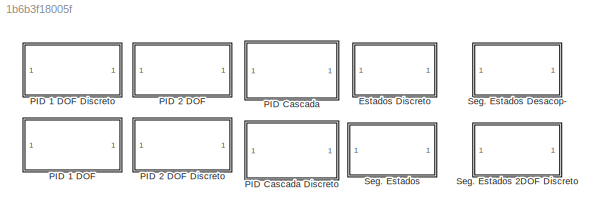
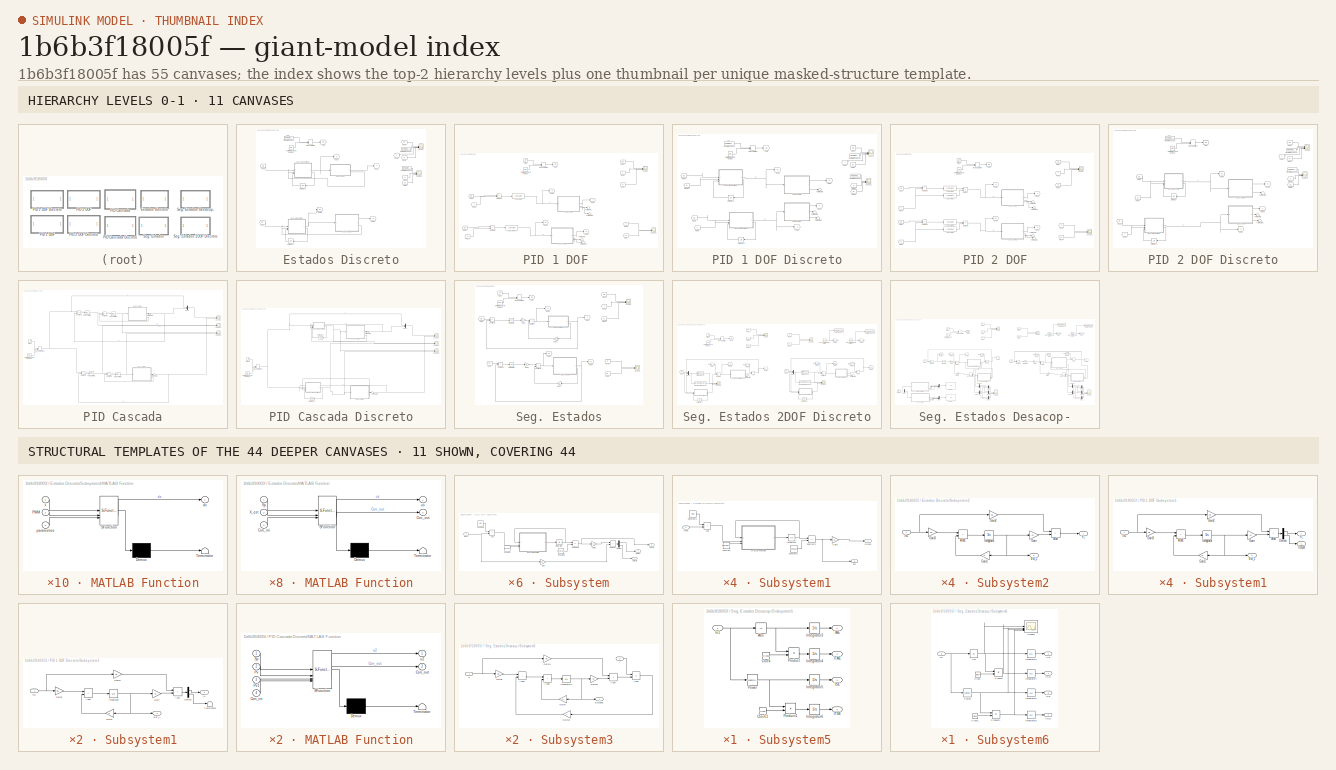
[diagram: thumbnail index - top-2 hierarchy levels (11 canvases) + 11 structural-template representatives of the remaining 44 canvases]
MODEL slx_1b6b3f18005f
KIND model
CONFIG AbsTol = auto
CONFIG EnableMultiTasking = off
CONFIG FixedStep = auto
CONFIG MaxStep = 1e-3
CONFIG MinStep = auto
CONFIG RelTol = 1e-3
CONFIG SampleTimeConstraint = Unconstrained
CONFIG SolverName = ode23t
CONFIG StartTime = 0.0
CONFIG StopTime = 60
BLOCK [SubSystem] Estados Discreto
  Commented = on
BLOCK [From] Estados Discreto/From
  GotoTag = Sp
BLOCK [FromWorkspace] Estados Discreto/From Workspace
  VariableName = [t' SP]
BLOCK [FromWorkspace] Estados Discreto/From Workspace1
  VariableName = [t' theta]
BLOCK [FromWorkspace] Estados Discreto/From Workspace2
  VariableName = [t' pwm]
BLOCK [From] Estados Discreto/From1
  GotoTag = Sp
BLOCK [From] Estados Discreto/From3
  GotoTag = Sp
BLOCK [From] Estados Discreto/From4
  GotoTag = YL
BLOCK [From] Estados Discreto/From5
  GotoTag = UL
BLOCK [From] Estados Discreto/From6
  GotoTag = Y
BLOCK [From] Estados Discreto/From7
  GotoTag = U
BLOCK [Goto] Estados Discreto/Goto
  GotoTag = Sp
BLOCK [Goto] Estados Discreto/Goto1
  GotoTag = Y
BLOCK [Goto] Estados Discreto/Goto3
  GotoTag = U
BLOCK [Goto] Estados Discreto/Goto5
  GotoTag = YL
BLOCK [Goto] Estados Discreto/Goto6
  GotoTag = UL
BLOCK [SubSystem] Estados Discreto/MATLAB Function
  ErrorFcn = Stateflow.Translate.translate
  PermitHierarchicalResolution = ExplicitOnly
  SFBlockType = MATLAB Function
  TreatAsAtomicUnit = on
BLOCK [Demux] Estados Discreto/MATLAB Function/ Demux 
  Outputs = 1
BLOCK [S-Function] Estados Discreto/MATLAB Function/ SFunction 
  EnableBusSupport = off
  FunctionName = sf_sfun
  PortCounts = [3 3]
  SFcnIsStateOwnerBlock = off
  SFunctionDeploymentMode = off
  Tag = Stateflow S-Function 15
BLOCK [Terminator] Estados Discreto/MATLAB Function/ Terminator 
BLOCK [Inport] Estados Discreto/MATLAB Function/Con_ini
  Port = 3
BLOCK [Outport] Estados Discreto/MATLAB Function/Con_out
  Port = 2
BLOCK [Inport] Estados Discreto/MATLAB Function/Sp
BLOCK [Inport] Estados Discreto/MATLAB Function/X_est
  Port = 2
BLOCK [Outport] Estados Discreto/MATLAB Function/us
BLOCK [SubSystem] Estados Discreto/MATLAB Function1
  ErrorFcn = Stateflow.Translate.translate
  PermitHierarchicalResolution = ExplicitOnly
  SFBlockType = MATLAB Function
  TreatAsAtomicUnit = on
BLOCK [Demux] Estados Discreto/MATLAB Function1/ Demux 
  Outputs = 1
BLOCK [S-Function] Estados Discreto/MATLAB Function1/ SFunction 
  EnableBusSupport = off
  FunctionName = sf_sfun
  PortCounts = [3 3]
  SFcnIsStateOwnerBlock = off
  SFunctionDeploymentMode = off
  Tag = Stateflow S-Function 2
BLOCK [Terminator] Estados Discreto/MATLAB Function1/ Terminator 
BLOCK [Inport] Estados Discreto/MATLAB Function1/Con_ini
  Port = 3
BLOCK [Outport] Estados Discreto/MATLAB Function1/Con_out
  Port = 2
BLOCK [Inport] Estados Discreto/MATLAB Function1/Sp
BLOCK [Inport] Estados Discreto/MATLAB Function1/X_est
  Port = 2
BLOCK [Outport] Estados Discreto/MATLAB Function1/us
BLOCK [ManualSwitch] Estados Discreto/Manual Switch
BLOCK [Scope] Estados Discreto/Scope
  Floating = off
  NumInputPorts = 4
  ScopeSpecificationString = Simulink.scopes.TimeScopeBlockCfg('CurrentConfiguration', extmgr.ConfigurationSet(extmgr.Configuration('Core','General UI',true,'FigureColor',[1 1 1]),extmgr.Configuration('Core','Source UI',true),extmgr.Configuration('Sources','WiredSimulink',true,'DataLoggingVariableName','ScopeData6'),extmgr.Configuration('Visuals','Time Domain',true,'SerializedDisplays',{struct('MinYLimReal','-3.98793','MaxYLi...<+2506ch>
BLOCK [Scope] Estados Discreto/Scope1
  Floating = off
  NumInputPorts = 3
  ScopeSpecificationString = Simulink.scopes.TimeScopeBlockCfg('CurrentConfiguration', extmgr.ConfigurationSet(extmgr.Configuration('Core','General UI',true,'FigureColor',[1 1 1]),extmgr.Configuration('Core','Source UI',true),extmgr.Configuration('Sources','WiredSimulink',true,'DataLoggingVariableName','ScopeData7'),extmgr.Configuration('Visuals','Time Domain',true,'SerializedDisplays',{struct('MinYLimReal','-57.855','MaxYLim...<+2485ch>
BLOCK [SubSystem] Estados Discreto/Subsystem1
BLOCK [Sum] Estados Discreto/Subsystem1/Add
  IconShape = rectangular
BLOCK [Constant] Estados Discreto/Subsystem1/Constant
  Value = [Ro,Lo,Kio, Kvo, Jmo, Jlo, Bmo, Blo, no, go, do, mo]
BLOCK [Constant] Estados Discreto/Subsystem1/Constant1
  Value = Vin0
BLOCK [Constant] Estados Discreto/Subsystem1/Constant2
  Value = [X10; X20]
BLOCK [Outport] Estados Discreto/Subsystem1/Est
  Port = 2
BLOCK [Gain] Estados Discreto/Subsystem1/Gain1
  Gain = CL
  Multiplication = Matrix(K*u)
BLOCK [Inport] Estados Discreto/Subsystem1/Input
BLOCK [Integrator] Estados Discreto/Subsystem1/Integrator
  InitialCondition = [X10; X20]
BLOCK [SubSystem] Estados Discreto/Subsystem1/MATLAB Function
  ErrorFcn = Stateflow.Translate.translate
  PermitHierarchicalResolution = ExplicitOnly
  SFBlockType = MATLAB Function
  TreatAsAtomicUnit = on
BLOCK [Demux] Estados Discreto/Subsystem1/MATLAB Function/ Demux 
  Outputs = 1
BLOCK [S-Function] Estados Discreto/Subsystem1/MATLAB Function/ SFunction 
  EnableBusSupport = off
  FunctionName = sf_sfun
  PortCounts = [3 2]
  SFcnIsStateOwnerBlock = off
  SFunctionDeploymentMode = off
  Tag = Stateflow S-Function 12
BLOCK [Terminator] Estados Discreto/Subsystem1/MATLAB Function/ Terminator 
BLOCK [Inport] Estados Discreto/Subsystem1/MATLAB Function/PWM
  Port = 2
BLOCK [Outport] Estados Discreto/Subsystem1/MATLAB Function/dx
BLOCK [Inport] Estados Discreto/Subsystem1/MATLAB Function/parametros
  Port = 3
BLOCK [Inport] Estados Discreto/Subsystem1/MATLAB Function/x
BLOCK [Outport] Estados Discreto/Subsystem1/Output
BLOCK [Sum] Estados Discreto/Subsystem1/Subtract1
  IconShape = rectangular
  Inputs = +-
BLOCK [SubSystem] Estados Discreto/Subsystem2
BLOCK [Sum] Estados Discreto/Subsystem2/Add
  IconShape = rectangular
BLOCK [Sum] Estados Discreto/Subsystem2/Add1
  IconShape = rectangular
BLOCK [Outport] Estados Discreto/Subsystem2/Est_L
  Port = 2
BLOCK [Gain] Estados Discreto/Subsystem2/Gain
  Gain = CL
  Multiplication = Matrix(K*u)
BLOCK [Gain] Estados Discreto/Subsystem2/Gain1
  Gain = AL
  Multiplication = Matrix(K*u)
  NameLocation = top
BLOCK [Gain] Estados Discreto/Subsystem2/Gain2
  Gain = DL
  Multiplication = Matrix(K*u)
BLOCK [Gain] Estados Discreto/Subsystem2/Gain3
  Gain = BL
  Multiplication = Matrix(K*u)
BLOCK [Inport] Estados Discreto/Subsystem2/In1
BLOCK [Integrator] Estados Discreto/Subsystem2/Integrator
BLOCK [Outport] Estados Discreto/Subsystem2/YL
BLOCK [UniformRandomNumber] Estados Discreto/Uniform Random Number
  Maximum = 120*(pi/180)
  Minimum = -120*(pi/180)
  SampleTime = 10
BLOCK [UnitDelay] Estados Discreto/Unit Delay1
  HasFrameUpgradeWarning = on
  InitialCondition = zeros(1,2)
  NameLocation = top
  SampleTime = Tm
BLOCK [UnitDelay] Estados Discreto/Unit Delay2
  HasFrameUpgradeWarning = on
  InitialCondition = zeros(1,2)
  NameLocation = top
  SampleTime = Tm
BLOCK [SubSystem] PID 1 DOF 
  Commented = on
BLOCK [From] PID 1 DOF /From
  GotoTag = Sp
BLOCK [From] PID 1 DOF /From1
  GotoTag = Sp
BLOCK [From] PID 1 DOF /From10
  GotoTag = YL
BLOCK [From] PID 1 DOF /From2
  GotoTag = Y
BLOCK [From] PID 1 DOF /From4
  GotoTag = YL
BLOCK [From] PID 1 DOF /From5
  GotoTag = Y
BLOCK [From] PID 1 DOF /From6
  GotoTag = U
BLOCK [From] PID 1 DOF /From7
  GotoTag = UL
BLOCK [From] PID 1 DOF /From9
  GotoTag = Sp
BLOCK [Goto] PID 1 DOF /Goto
  GotoTag = Sp
BLOCK [Goto] PID 1 DOF /Goto1
  GotoTag = Y
BLOCK [Goto] PID 1 DOF /Goto3
  GotoTag = U
BLOCK [Goto] PID 1 DOF /Goto5
  GotoTag = YL
BLOCK [Goto] PID 1 DOF /Goto6
  GotoTag = UL
BLOCK [Reference] PID 1 DOF /LTI System  REF=cstblocks/LTI System
  SourceBlock = cstblocks/LTI System
  SourceType = LTI Block
BLOCK [Reference] PID 1 DOF /LTI System1  REF=cstblocks/LTI System
  SourceBlock = cstblocks/LTI System
  SourceType = LTI Block
BLOCK [ManualSwitch] PID 1 DOF /Manual Switch
  CurrentSetting = 0
BLOCK [Scope] PID 1 DOF /Scope
  Floating = off
  NumInputPorts = 3
  ScopeSpecificationString = Simulink.scopes.TimeScopeBlockCfg('CurrentConfiguration', extmgr.ConfigurationSet(extmgr.Configuration('Core','General UI',true,'FigureColor',[1 1 1]),extmgr.Configuration('Core','Source UI',true),extmgr.Configuration('Sources','WiredSimulink',true),extmgr.Configuration('Visuals','Time Domain',true,'SerializedDisplays',{struct('MinYLimReal','-1.54364','MaxYLimReal','1.56067','YLabelReal','','MinYL...<+2437ch>
BLOCK [Scope] PID 1 DOF /Scope1
  Floating = off
  NumInputPorts = 2
  ScopeSpecificationString = Simulink.scopes.TimeScopeBlockCfg('CurrentConfiguration', extmgr.ConfigurationSet(extmgr.Configuration('Core','General UI',true,'FigureColor',[1 1 1]),extmgr.Configuration('Core','Source UI',true),extmgr.Configuration('Sources','WiredSimulink',true,'DataLoggingVariableName','ScopeData1'),extmgr.Configuration('Visuals','Time Domain',true,'SerializedDisplays',{struct('MinYLimReal','-61.47582','MaxYL...<+2473ch>
BLOCK [Step] PID 1 DOF /Step
  After = 0
  SampleTime = 0
  Time = 0
BLOCK [SubSystem] PID 1 DOF /Subsystem
BLOCK [Sum] PID 1 DOF /Subsystem/Add
  IconShape = rectangular
BLOCK [Constant] PID 1 DOF /Subsystem/Constant
  Value = [Ro, Lo, Kio, Kvo, Jmo, Jlo, Bmo, Blo, no, go, do, mo]
BLOCK [Constant] PID 1 DOF /Subsystem/Constant1
  Value = Vin0
BLOCK [Constant] PID 1 DOF /Subsystem/Constant2
  Value = [X10; X20; X30]
BLOCK [Demux] PID 1 DOF /Subsystem/Demux
  Outputs = 2
BLOCK [Gain] PID 1 DOF /Subsystem/Gain
  Gain = DL
  Multiplication = Matrix(K*u)
BLOCK [Gain] PID 1 DOF /Subsystem/Gain1
  Gain = CL
  Multiplication = Matrix(K*u)
BLOCK [Inport] PID 1 DOF /Subsystem/Input
BLOCK [Integrator] PID 1 DOF /Subsystem/Integrator
  InitialCondition = [X10; X20; X30]
BLOCK [SubSystem] PID 1 DOF /Subsystem/MATLAB Function
  ErrorFcn = Stateflow.Translate.translate
  PermitHierarchicalResolution = ExplicitOnly
  SFBlockType = MATLAB Function
  TreatAsAtomicUnit = on
BLOCK [Demux] PID 1 DOF /Subsystem/MATLAB Function/ Demux 
  Outputs = 1
BLOCK [S-Function] PID 1 DOF /Subsystem/MATLAB Function/ SFunction 
  EnableBusSupport = off
  FunctionName = sf_sfun
  PortCounts = [3 2]
  SFcnIsStateOwnerBlock = off
  SFunctionDeploymentMode = off
  Tag = Stateflow S-Function 13
BLOCK [Terminator] PID 1 DOF /Subsystem/MATLAB Function/ Terminator 
BLOCK [Inport] PID 1 DOF /Subsystem/MATLAB Function/PWM
  Port = 2
BLOCK [Outport] PID 1 DOF /Subsystem/MATLAB Function/dx
BLOCK [Inport] PID 1 DOF /Subsystem/MATLAB Function/parametros
  Port = 3
BLOCK [Inport] PID 1 DOF /Subsystem/MATLAB Function/x
BLOCK [Outport] PID 1 DOF /Subsystem/Output
BLOCK [Outport] PID 1 DOF /Subsystem/Output1
  Port = 2
BLOCK [Outport] PID 1 DOF /Subsystem/Output2
  Port = 3
BLOCK [Sum] PID 1 DOF /Subsystem/Subtract
  IconShape = rectangular
BLOCK [Sum] PID 1 DOF /Subsystem/Subtract1
  IconShape = rectangular
  Inputs = +-
BLOCK [SubSystem] PID 1 DOF /Subsystem1
BLOCK [Sum] PID 1 DOF /Subsystem1/Add
  IconShape = rectangular
BLOCK [Sum] PID 1 DOF /Subsystem1/Add1
  IconShape = rectangular
BLOCK [Demux] PID 1 DOF /Subsystem1/Demux
  Outputs = 2
BLOCK [Outport] PID 1 DOF /Subsystem1/Est_L
  Port = 2
BLOCK [Gain] PID 1 DOF /Subsystem1/Gain
  Gain = CL
  Multiplication = Matrix(K*u)
BLOCK [Gain] PID 1 DOF /Subsystem1/Gain1
  Gain = AL
  Multiplication = Matrix(K*u)
  NameLocation = top
BLOCK [Gain] PID 1 DOF /Subsystem1/Gain2
  Gain = DL
  Multiplication = Matrix(K*u)
BLOCK [Gain] PID 1 DOF /Subsystem1/Gain3
  Gain = BL
  Multiplication = Matrix(K*u)
BLOCK [Inport] PID 1 DOF /Subsystem1/In1
BLOCK [Integrator] PID 1 DOF /Subsystem1/Integrator
BLOCK [Outport] PID 1 DOF /Subsystem1/Output
  Port = 3
BLOCK [Outport] PID 1 DOF /Subsystem1/YL
BLOCK [Sum] PID 1 DOF /Subtract1
  IconShape = rectangular
  Inputs = +-
BLOCK [Sum] PID 1 DOF /Subtract2
  IconShape = rectangular
  Inputs = +-
BLOCK [Terminator] PID 1 DOF /Terminator
BLOCK [Terminator] PID 1 DOF /Terminator1
BLOCK [Terminator] PID 1 DOF /Terminator2
BLOCK [Terminator] PID 1 DOF /Terminator3
BLOCK [UniformRandomNumber] PID 1 DOF /Uniform Random Number
  Maximum = 70*(pi/180)
  Minimum = -70*(pi/180)
  SampleTime = 10
BLOCK [SubSystem] PID 1 DOF Discreto
  Commented = on
BLOCK [FromWorkspace] PID 1 DOF Discreto/From Workspace
  VariableName = [t' SP]
BLOCK [FromWorkspace] PID 1 DOF Discreto/From Workspace1
  VariableName = [t' theta]
BLOCK [FromWorkspace] PID 1 DOF Discreto/From Workspace2
  VariableName = [t' pwm]
BLOCK [From] PID 1 DOF Discreto/From1
  GotoTag = Sp
BLOCK [From] PID 1 DOF Discreto/From10
  GotoTag = YL
BLOCK [From] PID 1 DOF Discreto/From2
  GotoTag = Y
BLOCK [From] PID 1 DOF Discreto/From3
  GotoTag = Sp
BLOCK [From] PID 1 DOF Discreto/From4
  GotoTag = YL
BLOCK [From] PID 1 DOF Discreto/From5
  GotoTag = UL
BLOCK [From] PID 1 DOF Discreto/From6
  GotoTag = Y
BLOCK [From] PID 1 DOF Discreto/From7
  GotoTag = U
BLOCK [From] PID 1 DOF Discreto/From9
  GotoTag = Sp
BLOCK [Goto] PID 1 DOF Discreto/Goto
  GotoTag = Sp
BLOCK [Goto] PID 1 DOF Discreto/Goto1
  GotoTag = Y
BLOCK [Goto] PID 1 DOF Discreto/Goto2
  GotoTag = U
BLOCK [Goto] PID 1 DOF Discreto/Goto5
  GotoTag = YL
BLOCK [Goto] PID 1 DOF Discreto/Goto6
  GotoTag = UL
BLOCK [SubSystem] PID 1 DOF Discreto/MATLAB Function1
  ErrorFcn = Stateflow.Translate.translate
  PermitHierarchicalResolution = ExplicitOnly
  SFBlockType = MATLAB Function
  TreatAsAtomicUnit = on
BLOCK [Demux] PID 1 DOF Discreto/MATLAB Function1/ Demux 
  Outputs = 1
BLOCK [S-Function] PID 1 DOF Discreto/MATLAB Function1/ SFunction 
  EnableBusSupport = off
  FunctionName = sf_sfun
  PortCounts = [3 3]
  SFcnIsStateOwnerBlock = off
  SFunctionDeploymentMode = off
  Tag = Stateflow S-Function 16
BLOCK [Terminator] PID 1 DOF Discreto/MATLAB Function1/ Terminator 
BLOCK [Inport] PID 1 DOF Discreto/MATLAB Function1/Con_ini
  Port = 3
BLOCK [Outport] PID 1 DOF Discreto/MATLAB Function1/Con_out
  Port = 2
BLOCK [Inport] PID 1 DOF Discreto/MATLAB Function1/Pv
  Port = 2
BLOCK [Inport] PID 1 DOF Discreto/MATLAB Function1/Sp
BLOCK [Outport] PID 1 DOF Discreto/MATLAB Function1/us
BLOCK [SubSystem] PID 1 DOF Discreto/MATLAB Function2
  ErrorFcn = Stateflow.Translate.translate
  PermitHierarchicalResolution = ExplicitOnly
  SFBlockType = MATLAB Function
  TreatAsAtomicUnit = on
BLOCK [Demux] PID 1 DOF Discreto/MATLAB Function2/ Demux 
  Outputs = 1
BLOCK [S-Function] PID 1 DOF Discreto/MATLAB Function2/ SFunction 
  EnableBusSupport = off
  FunctionName = sf_sfun
  PortCounts = [3 3]
  SFcnIsStateOwnerBlock = off
  SFunctionDeploymentMode = off
  Tag = Stateflow S-Function 17
BLOCK [Terminator] PID 1 DOF Discreto/MATLAB Function2/ Terminator 
BLOCK [Inport] PID 1 DOF Discreto/MATLAB Function2/Con_ini
  Port = 3
BLOCK [Outport] PID 1 DOF Discreto/MATLAB Function2/Con_out
  Port = 2
BLOCK [Inport] PID 1 DOF Discreto/MATLAB Function2/Pv
  Port = 2
BLOCK [Inport] PID 1 DOF Discreto/MATLAB Function2/Sp
BLOCK [Outport] PID 1 DOF Discreto/MATLAB Function2/us
BLOCK [ManualSwitch] PID 1 DOF Discreto/Manual Switch
BLOCK [Scope] PID 1 DOF Discreto/Scope
  Floating = off
  NumInputPorts = 4
  ScopeSpecificationString = Simulink.scopes.TimeScopeBlockCfg('CurrentConfiguration', extmgr.ConfigurationSet(extmgr.Configuration('Core','General UI',true,'FigureColor',[1 1 1]),extmgr.Configuration('Core','Source UI',true),extmgr.Configuration('Sources','WiredSimulink',true),extmgr.Configuration('Visuals','Time Domain',true,'SerializedDisplays',{struct('MinYLimReal','-1.54505','MaxYLimReal','1.64977','YLabelReal','','MinYL...<+2431ch>
BLOCK [Scope] PID 1 DOF Discreto/Scope1
  Floating = off
  NumInputPorts = 3
  ScopeSpecificationString = Simulink.scopes.TimeScopeBlockCfg('CurrentConfiguration', extmgr.ConfigurationSet(extmgr.Configuration('Core','General UI',true,'FigureColor',[1 1 1]),extmgr.Configuration('Core','Source UI',true),extmgr.Configuration('Sources','WiredSimulink',true,'DataLoggingVariableName','ScopeData1'),extmgr.Configuration('Visuals','Time Domain',true,'SerializedDisplays',{struct('MinYLimReal','-125.00000','MaxY...<+2506ch>
BLOCK [SubSystem] PID 1 DOF Discreto/Subsystem
BLOCK [Sum] PID 1 DOF Discreto/Subsystem/Add
  IconShape = rectangular
BLOCK [Constant] PID 1 DOF Discreto/Subsystem/Constant
  Value = [Ro, Lo, Kio, Kvo, Jmo, Jlo, Bmo, Blo, no, go, do, mo]
BLOCK [Constant] PID 1 DOF Discreto/Subsystem/Constant1
  Value = Vin0
BLOCK [Constant] PID 1 DOF Discreto/Subsystem/Constant2
  Value = [X10; X20; X30]
BLOCK [Demux] PID 1 DOF Discreto/Subsystem/Demux
  Outputs = 2
BLOCK [Gain] PID 1 DOF Discreto/Subsystem/Gain
  Gain = DL
  Multiplication = Matrix(K*u)
BLOCK [Gain] PID 1 DOF Discreto/Subsystem/Gain1
  Gain = CL
  Multiplication = Matrix(K*u)
BLOCK [Inport] PID 1 DOF Discreto/Subsystem/Input
BLOCK [Integrator] PID 1 DOF Discreto/Subsystem/Integrator
  InitialCondition = [X10; X20; X30]
BLOCK [SubSystem] PID 1 DOF Discreto/Subsystem/MATLAB Function
  ErrorFcn = Stateflow.Translate.translate
  PermitHierarchicalResolution = ExplicitOnly
  SFBlockType = MATLAB Function
  TreatAsAtomicUnit = on
BLOCK [Demux] PID 1 DOF Discreto/Subsystem/MATLAB Function/ Demux 
  Outputs = 1
BLOCK [S-Function] PID 1 DOF Discreto/Subsystem/MATLAB Function/ SFunction 
  EnableBusSupport = off
  FunctionName = sf_sfun
  PortCounts = [3 2]
  SFcnIsStateOwnerBlock = off
  SFunctionDeploymentMode = off
  Tag = Stateflow S-Function 14
BLOCK [Terminator] PID 1 DOF Discreto/Subsystem/MATLAB Function/ Terminator 
BLOCK [Inport] PID 1 DOF Discreto/Subsystem/MATLAB Function/PWM
  Port = 2
BLOCK [Outport] PID 1 DOF Discreto/Subsystem/MATLAB Function/dx
BLOCK [Inport] PID 1 DOF Discreto/Subsystem/MATLAB Function/parametros
  Port = 3
BLOCK [Inport] PID 1 DOF Discreto/Subsystem/MATLAB Function/x
BLOCK [Outport] PID 1 DOF Discreto/Subsystem/Output
BLOCK [Outport] PID 1 DOF Discreto/Subsystem/Output1
  Port = 2
BLOCK [Outport] PID 1 DOF Discreto/Subsystem/Output2
  Port = 3
BLOCK [Sum] PID 1 DOF Discreto/Subsystem/Subtract
  IconShape = rectangular
BLOCK [Sum] PID 1 DOF Discreto/Subsystem/Subtract1
  IconShape = rectangular
  Inputs = +-
BLOCK [SubSystem] PID 1 DOF Discreto/Subsystem1
BLOCK [Sum] PID 1 DOF Discreto/Subsystem1/Add
  IconShape = rectangular
BLOCK [Sum] PID 1 DOF Discreto/Subsystem1/Add1
  IconShape = rectangular
BLOCK [Demux] PID 1 DOF Discreto/Subsystem1/Demux
  Outputs = 2
BLOCK [Outport] PID 1 DOF Discreto/Subsystem1/Est_L
  Port = 2
BLOCK [Gain] PID 1 DOF Discreto/Subsystem1/Gain
  Gain = CL
  Multiplication = Matrix(K*u)
BLOCK [Gain] PID 1 DOF Discreto/Subsystem1/Gain1
  Gain = AL
  Multiplication = Matrix(K*u)
  NameLocation = top
BLOCK [Gain] PID 1 DOF Discreto/Subsystem1/Gain2
  Gain = DL
  Multiplication = Matrix(K*u)
BLOCK [Gain] PID 1 DOF Discreto/Subsystem1/Gain3
  Gain = BL
  Multiplication = Matrix(K*u)
BLOCK [Inport] PID 1 DOF Discreto/Subsystem1/In1
BLOCK [Integrator] PID 1 DOF Discreto/Subsystem1/Integrator
BLOCK [Terminator] PID 1 DOF Discreto/Subsystem1/Terminator
BLOCK [Outport] PID 1 DOF Discreto/Subsystem1/YL
BLOCK [Terminator] PID 1 DOF Discreto/Terminator1
BLOCK [Terminator] PID 1 DOF Discreto/Terminator2
BLOCK [Terminator] PID 1 DOF Discreto/Terminator3
BLOCK [UniformRandomNumber] PID 1 DOF Discreto/Uniform Random Number
  Maximum = 60*(pi/180)
  Minimum = -60*(pi/180)
  SampleTime = 10
BLOCK [UnitDelay] PID 1 DOF Discreto/Unit Delay1
  HasFrameUpgradeWarning = on
  InitialCondition = zeros(4,1)
  NameLocation = top
  SampleTime = Tm
BLOCK [UnitDelay] PID 1 DOF Discreto/Unit Delay2
  HasFrameUpgradeWarning = on
  InitialCondition = zeros(5,1)
  NameLocation = top
  SampleTime = Tm
BLOCK [SubSystem] PID 2 DOF
  Commented = on
BLOCK [SubSystem] PID 2 DOF Discreto
  Commented = on
BLOCK [From] PID 2 DOF Discreto/From
  GotoTag = Sp
BLOCK [FromWorkspace] PID 2 DOF Discreto/From Workspace
  VariableName = [t' SP]
BLOCK [FromWorkspace] PID 2 DOF Discreto/From Workspace1
  VariableName = [t' theta]
BLOCK [FromWorkspace] PID 2 DOF Discreto/From Workspace2
  VariableName = [t' pwm]
BLOCK [From] PID 2 DOF Discreto/From1
  GotoTag = Sp
BLOCK [From] PID 2 DOF Discreto/From2
  GotoTag = UL
BLOCK [From] PID 2 DOF Discreto/From3
  GotoTag = Sp
BLOCK [From] PID 2 DOF Discreto/From4
  GotoTag = YL
BLOCK [From] PID 2 DOF Discreto/From5
  GotoTag = YL
BLOCK [From] PID 2 DOF Discreto/From6
  GotoTag = Y
BLOCK [From] PID 2 DOF Discreto/From7
  GotoTag = U
BLOCK [From] PID 2 DOF Discreto/From8
  GotoTag = Y
BLOCK [Goto] PID 2 DOF Discreto/Goto
  GotoTag = Sp
BLOCK [Goto] PID 2 DOF Discreto/Goto1
  GotoTag = Y
BLOCK [Goto] PID 2 DOF Discreto/Goto2
  GotoTag = U
BLOCK [Goto] PID 2 DOF Discreto/Goto5
  GotoTag = YL
BLOCK [Goto] PID 2 DOF Discreto/Goto6
  GotoTag = UL
BLOCK [SubSystem] PID 2 DOF Discreto/MATLAB Function
  ErrorFcn = Stateflow.Translate.translate
  PermitHierarchicalResolution = ExplicitOnly
  SFBlockType = MATLAB Function
  TreatAsAtomicUnit = on
BLOCK [Demux] PID 2 DOF Discreto/MATLAB Function/ Demux 
  Outputs = 1
BLOCK [S-Function] PID 2 DOF Discreto/MATLAB Function/ SFunction 
  EnableBusSupport = off
  FunctionName = sf_sfun
  PortCounts = [3 3]
  SFcnIsStateOwnerBlock = off
  SFunctionDeploymentMode = off
  Tag = Stateflow S-Function 19
BLOCK [Terminator] PID 2 DOF Discreto/MATLAB Function/ Terminator 
BLOCK [Inport] PID 2 DOF Discreto/MATLAB Function/Con_ini
  Port = 3
BLOCK [Outport] PID 2 DOF Discreto/MATLAB Function/Con_out
  Port = 2
BLOCK [Inport] PID 2 DOF Discreto/MATLAB Function/Pv
  Port = 2
BLOCK [Inport] PID 2 DOF Discreto/MATLAB Function/Sp
BLOCK [Outport] PID 2 DOF Discreto/MATLAB Function/us
BLOCK [SubSystem] PID 2 DOF Discreto/MATLAB Function1
  ErrorFcn = Stateflow.Translate.translate
  PermitHierarchicalResolution = ExplicitOnly
  SFBlockType = MATLAB Function
  TreatAsAtomicUnit = on
BLOCK [Demux] PID 2 DOF Discreto/MATLAB Function1/ Demux 
  Outputs = 1
BLOCK [S-Function] PID 2 DOF Discreto/MATLAB Function1/ SFunction 
  EnableBusSupport = off
  FunctionName = sf_sfun
  PortCounts = [3 3]
  SFcnIsStateOwnerBlock = off
  SFunctionDeploymentMode = off
  Tag = Stateflow S-Function 21
BLOCK [Terminator] PID 2 DOF Discreto/MATLAB Function1/ Terminator 
BLOCK [Inport] PID 2 DOF Discreto/MATLAB Function1/Con_ini
  Port = 3
BLOCK [Outport] PID 2 DOF Discreto/MATLAB Function1/Con_out
  Port = 2
BLOCK [Inport] PID 2 DOF Discreto/MATLAB Function1/Pv
  Port = 2
BLOCK [Inport] PID 2 DOF Discreto/MATLAB Function1/Sp
BLOCK [Outport] PID 2 DOF Discreto/MATLAB Function1/us
BLOCK [ManualSwitch] PID 2 DOF Discreto/Manual Switch
BLOCK [Scope] PID 2 DOF Discreto/Scope
  Floating = off
  NumInputPorts = 4
  ScopeSpecificationString = Simulink.scopes.TimeScopeBlockCfg('CurrentConfiguration', extmgr.ConfigurationSet(extmgr.Configuration('Core','General UI',true,'FigureColor',[1 1 1]),extmgr.Configuration('Core','Source UI',true),extmgr.Configuration('Sources','WiredSimulink',true,'DataLoggingVariableName','ScopeData3'),extmgr.Configuration('Visuals','Time Domain',true,'SerializedDisplays',{struct('MinYLimReal','-2.16752','MaxYLi...<+2506ch>
BLOCK [Scope] PID 2 DOF Discreto/Scope1
  Floating = off
  NumInputPorts = 3
  ScopeSpecificationString = Simulink.scopes.TimeScopeBlockCfg('CurrentConfiguration', extmgr.ConfigurationSet(extmgr.Configuration('Core','General UI',true,'FigureColor',[1 1 1]),extmgr.Configuration('Core','Source UI',true),extmgr.Configuration('Sources','WiredSimulink',true,'DataLoggingVariableName','ScopeData4'),extmgr.Configuration('Visuals','Time Domain',true,'SerializedDisplays',{struct('MinYLimReal','-125.00000','MaxY...<+2505ch>
BLOCK [SubSystem] PID 2 DOF Discreto/Subsystem
BLOCK [Sum] PID 2 DOF Discreto/Subsystem/Add
  IconShape = rectangular
BLOCK [Constant] PID 2 DOF Discreto/Subsystem/Constant
  Value = [Ro, Lo, Kio, Kvo, Jmo, Jlo, Bmo, Blo, no, go, do, mo]
BLOCK [Constant] PID 2 DOF Discreto/Subsystem/Constant1
  Value = Vin0
BLOCK [Constant] PID 2 DOF Discreto/Subsystem/Constant2
  Value = [X10; X20; X30]
BLOCK [Demux] PID 2 DOF Discreto/Subsystem/Demux
  Outputs = 2
BLOCK [Gain] PID 2 DOF Discreto/Subsystem/Gain
  Gain = DL
  Multiplication = Matrix(K*u)
BLOCK [Gain] PID 2 DOF Discreto/Subsystem/Gain1
  Gain = CL
  Multiplication = Matrix(K*u)
BLOCK [Inport] PID 2 DOF Discreto/Subsystem/Input
BLOCK [Integrator] PID 2 DOF Discreto/Subsystem/Integrator
  InitialCondition = [X10; X20; X30]
BLOCK [SubSystem] PID 2 DOF Discreto/Subsystem/MATLAB Function
  ErrorFcn = Stateflow.Translate.translate
  PermitHierarchicalResolution = ExplicitOnly
  SFBlockType = MATLAB Function
  TreatAsAtomicUnit = on
BLOCK [Demux] PID 2 DOF Discreto/Subsystem/MATLAB Function/ Demux 
  Outputs = 1
BLOCK [S-Function] PID 2 DOF Discreto/Subsystem/MATLAB Function/ SFunction 
  EnableBusSupport = off
  FunctionName = sf_sfun
  PortCounts = [3 2]
  SFcnIsStateOwnerBlock = off
  SFunctionDeploymentMode = off
  Tag = Stateflow S-Function 20
BLOCK [Terminator] PID 2 DOF Discreto/Subsystem/MATLAB Function/ Terminator 
BLOCK [Inport] PID 2 DOF Discreto/Subsystem/MATLAB Function/PWM
  Port = 2
BLOCK [Outport] PID 2 DOF Discreto/Subsystem/MATLAB Function/dx
BLOCK [Inport] PID 2 DOF Discreto/Subsystem/MATLAB Function/parametros
  Port = 3
BLOCK [Inport] PID 2 DOF Discreto/Subsystem/MATLAB Function/x
BLOCK [Outport] PID 2 DOF Discreto/Subsystem/Output
BLOCK [Outport] PID 2 DOF Discreto/Subsystem/Output1
  Port = 2
BLOCK [Outport] PID 2 DOF Discreto/Subsystem/Output2
  Port = 3
BLOCK [Sum] PID 2 DOF Discreto/Subsystem/Subtract
  IconShape = rectangular
BLOCK [Sum] PID 2 DOF Discreto/Subsystem/Subtract1
  IconShape = rectangular
  Inputs = +-
BLOCK [SubSystem] PID 2 DOF Discreto/Subsystem1
BLOCK [Sum] PID 2 DOF Discreto/Subsystem1/Add
  IconShape = rectangular
BLOCK [Sum] PID 2 DOF Discreto/Subsystem1/Add1
  IconShape = rectangular
BLOCK [Demux] PID 2 DOF Discreto/Subsystem1/Demux
  Outputs = 2
BLOCK [Outport] PID 2 DOF Discreto/Subsystem1/Est_L
  Port = 2
BLOCK [Gain] PID 2 DOF Discreto/Subsystem1/Gain
  Gain = CL
  Multiplication = Matrix(K*u)
BLOCK [Gain] PID 2 DOF Discreto/Subsystem1/Gain1
  Gain = AL
  Multiplication = Matrix(K*u)
  NameLocation = top
BLOCK [Gain] PID 2 DOF Discreto/Subsystem1/Gain2
  Gain = DL
  Multiplication = Matrix(K*u)
BLOCK [Gain] PID 2 DOF Discreto/Subsystem1/Gain3
  Gain = BL
  Multiplication = Matrix(K*u)
BLOCK [Inport] PID 2 DOF Discreto/Subsystem1/In1
BLOCK [Integrator] PID 2 DOF Discreto/Subsystem1/Integrator
BLOCK [Terminator] PID 2 DOF Discreto/Subsystem1/Terminator
BLOCK [Outport] PID 2 DOF Discreto/Subsystem1/YL
BLOCK [Terminator] PID 2 DOF Discreto/Terminator1
BLOCK [Terminator] PID 2 DOF Discreto/Terminator2
BLOCK [Terminator] PID 2 DOF Discreto/Terminator3
BLOCK [UniformRandomNumber] PID 2 DOF Discreto/Uniform Random Number
  Maximum = 65*(pi/180)
  Minimum = -65*(pi/180)
  SampleTime = 10
BLOCK [UnitDelay] PID 2 DOF Discreto/Unit Delay
  HasFrameUpgradeWarning = on
  InitialCondition = zeros(6,1)
  NameLocation = top
  SampleTime = Tm
BLOCK [UnitDelay] PID 2 DOF Discreto/Unit Delay1
  HasFrameUpgradeWarning = on
  InitialCondition = zeros(6,1)
  NameLocation = top
  SampleTime = Tm
BLOCK [From] PID 2 DOF/From
  GotoTag = Sp
BLOCK [From] PID 2 DOF/From1
  GotoTag = Sp
BLOCK [From] PID 2 DOF/From2
  GotoTag = Y
BLOCK [From] PID 2 DOF/From3
  GotoTag = Sp
BLOCK [From] PID 2 DOF/From4
  GotoTag = YL
BLOCK [From] PID 2 DOF/From5
  GotoTag = Y
BLOCK [From] PID 2 DOF/From6
  GotoTag = U
BLOCK [From] PID 2 DOF/From7
  GotoTag = UL
BLOCK [From] PID 2 DOF/From8
  GotoTag = YL
BLOCK [Goto] PID 2 DOF/Goto
  GotoTag = Sp
BLOCK [Goto] PID 2 DOF/Goto1
  GotoTag = Y
BLOCK [Goto] PID 2 DOF/Goto3
  GotoTag = U
BLOCK [Goto] PID 2 DOF/Goto5
  GotoTag = YL
BLOCK [Goto] PID 2 DOF/Goto6
  GotoTag = UL
BLOCK [Reference] PID 2 DOF/LTI System  REF=cstblocks/LTI System
  SourceBlock = cstblocks/LTI System
  SourceType = LTI Block
BLOCK [Reference] PID 2 DOF/LTI System1  REF=cstblocks/LTI System
  SourceBlock = cstblocks/LTI System
  SourceType = LTI Block
BLOCK [Reference] PID 2 DOF/LTI System2  REF=cstblocks/LTI System
  SourceBlock = cstblocks/LTI System
  SourceType = LTI Block
BLOCK [Reference] PID 2 DOF/LTI System3  REF=cstblocks/LTI System
  SourceBlock = cstblocks/LTI System
  SourceType = LTI Block
BLOCK [ManualSwitch] PID 2 DOF/Manual Switch
  CurrentSetting = 0
BLOCK [Scope] PID 2 DOF/Scope
  Floating = off
  NumInputPorts = 3
  ScopeSpecificationString = Simulink.scopes.TimeScopeBlockCfg('CurrentConfiguration', extmgr.ConfigurationSet(extmgr.Configuration('Core','General UI',true,'FigureColor',[1 1 1]),extmgr.Configuration('Core','Source UI',true),extmgr.Configuration('Sources','WiredSimulink',true,'DataLoggingVariableName','ScopeData1'),extmgr.Configuration('Visuals','Time Domain',true,'SerializedDisplays',{struct('MinYLimReal','-1.38956','MaxYLi...<+2476ch>
BLOCK [Scope] PID 2 DOF/Scope1
  Floating = off
  NumInputPorts = 2
  ScopeSpecificationString = Simulink.scopes.TimeScopeBlockCfg('CurrentConfiguration', extmgr.ConfigurationSet(extmgr.Configuration('Core','General UI',true,'FigureColor',[1 1 1]),extmgr.Configuration('Core','Source UI',true),extmgr.Configuration('Sources','WiredSimulink',true,'DataLoggingVariableName','ScopeData2'),extmgr.Configuration('Visuals','Time Domain',true,'SerializedDisplays',{struct('MinYLimReal','-51.14482','MaxYL...<+2473ch>
BLOCK [Step] PID 2 DOF/Step
  After = 0
  SampleTime = 0
  Time = 0
BLOCK [SubSystem] PID 2 DOF/Subsystem
BLOCK [Sum] PID 2 DOF/Subsystem/Add
  IconShape = rectangular
BLOCK [Constant] PID 2 DOF/Subsystem/Constant
  Value = [Ro, Lo, Kio, Kvo, Jmo, Jlo, Bmo, Blo, no, go, do, mo]
BLOCK [Constant] PID 2 DOF/Subsystem/Constant1
  Value = Vin0
BLOCK [Constant] PID 2 DOF/Subsystem/Constant2
  Value = [X10; X20; X30]
BLOCK [Demux] PID 2 DOF/Subsystem/Demux
  Outputs = 2
BLOCK [Gain] PID 2 DOF/Subsystem/Gain
  Gain = DL
  Multiplication = Matrix(K*u)
BLOCK [Gain] PID 2 DOF/Subsystem/Gain1
  Gain = CL
  Multiplication = Matrix(K*u)
BLOCK [Inport] PID 2 DOF/Subsystem/Input
BLOCK [Integrator] PID 2 DOF/Subsystem/Integrator
  InitialCondition = [X10; X20; X30]
BLOCK [SubSystem] PID 2 DOF/Subsystem/MATLAB Function
  ErrorFcn = Stateflow.Translate.translate
  PermitHierarchicalResolution = ExplicitOnly
  SFBlockType = MATLAB Function
  TreatAsAtomicUnit = on
BLOCK [Demux] PID 2 DOF/Subsystem/MATLAB Function/ Demux 
  Outputs = 1
BLOCK [S-Function] PID 2 DOF/Subsystem/MATLAB Function/ SFunction 
  EnableBusSupport = off
  FunctionName = sf_sfun
  PortCounts = [3 2]
  SFcnIsStateOwnerBlock = off
  SFunctionDeploymentMode = off
  Tag = Stateflow S-Function 18
BLOCK [Terminator] PID 2 DOF/Subsystem/MATLAB Function/ Terminator 
BLOCK [Inport] PID 2 DOF/Subsystem/MATLAB Function/PWM
  Port = 2
BLOCK [Outport] PID 2 DOF/Subsystem/MATLAB Function/dx
BLOCK [Inport] PID 2 DOF/Subsystem/MATLAB Function/parametros
  Port = 3
BLOCK [Inport] PID 2 DOF/Subsystem/MATLAB Function/x
BLOCK [Outport] PID 2 DOF/Subsystem/Output
BLOCK [Outport] PID 2 DOF/Subsystem/Output1
  Port = 2
BLOCK [Outport] PID 2 DOF/Subsystem/Output2
  Port = 3
BLOCK [Sum] PID 2 DOF/Subsystem/Subtract
  IconShape = rectangular
BLOCK [Sum] PID 2 DOF/Subsystem/Subtract1
  IconShape = rectangular
  Inputs = +-
BLOCK [SubSystem] PID 2 DOF/Subsystem1
BLOCK [Sum] PID 2 DOF/Subsystem1/Add
  IconShape = rectangular
BLOCK [Sum] PID 2 DOF/Subsystem1/Add1
  IconShape = rectangular
BLOCK [Demux] PID 2 DOF/Subsystem1/Demux
  Outputs = 2
BLOCK [Outport] PID 2 DOF/Subsystem1/Est_L
  Port = 2
BLOCK [Gain] PID 2 DOF/Subsystem1/Gain
  Gain = CL
  Multiplication = Matrix(K*u)
BLOCK [Gain] PID 2 DOF/Subsystem1/Gain1
  Gain = AL
  Multiplication = Matrix(K*u)
  NameLocation = top
BLOCK [Gain] PID 2 DOF/Subsystem1/Gain2
  Gain = DL
  Multiplication = Matrix(K*u)
BLOCK [Gain] PID 2 DOF/Subsystem1/Gain3
  Gain = BL
  Multiplication = Matrix(K*u)
BLOCK [Inport] PID 2 DOF/Subsystem1/In1
BLOCK [Integrator] PID 2 DOF/Subsystem1/Integrator
BLOCK [Outport] PID 2 DOF/Subsystem1/Output
  Port = 3
BLOCK [Outport] PID 2 DOF/Subsystem1/YL
BLOCK [Sum] PID 2 DOF/Subtract
  IconShape = rectangular
  Inputs = +-
BLOCK [Sum] PID 2 DOF/Subtract1
  IconShape = rectangular
  Inputs = +-
BLOCK [Sum] PID 2 DOF/Subtract2
  IconShape = rectangular
  Inputs = +-
BLOCK [Sum] PID 2 DOF/Subtract3
  IconShape = rectangular
  Inputs = +-
BLOCK [Terminator] PID 2 DOF/Terminator
BLOCK [Terminator] PID 2 DOF/Terminator1
BLOCK [Terminator] PID 2 DOF/Terminator2
BLOCK [Terminator] PID 2 DOF/Terminator3
BLOCK [UniformRandomNumber] PID 2 DOF/Uniform Random Number
  Maximum = 60*(pi/180)
  Minimum = -60*(pi/180)
  SampleTime = 10
BLOCK [SubSystem] PID Cascada
  Commented = on
BLOCK [SubSystem] PID Cascada Discreto
  Commented = on
BLOCK [SubSystem] PID Cascada Discreto/MATLAB Function
  ErrorFcn = Stateflow.Translate.translate
  PermitHierarchicalResolution = ExplicitOnly
  SFBlockType = MATLAB Function
  TreatAsAtomicUnit = on
BLOCK [Demux] PID Cascada Discreto/MATLAB Function/ Demux 
  Outputs = 1
BLOCK [S-Function] PID Cascada Discreto/MATLAB Function/ SFunction 
  EnableBusSupport = off
  FunctionName = sf_sfun
  PortCounts = [4 3]
  SFcnIsStateOwnerBlock = off
  SFunctionDeploymentMode = off
  Tag = Stateflow S-Function 4
BLOCK [Terminator] PID Cascada Discreto/MATLAB Function/ Terminator 
BLOCK [Inport] PID Cascada Discreto/MATLAB Function/Con_ini
  Port = 4
BLOCK [Outport] PID Cascada Discreto/MATLAB Function/Con_out
  Port = 2
BLOCK [Inport] PID Cascada Discreto/MATLAB Function/Pv
  Port = 2
BLOCK [Inport] PID Cascada Discreto/MATLAB Function/Pv1
  Port = 3
BLOCK [Inport] PID Cascada Discreto/MATLAB Function/Sp
BLOCK [Outport] PID Cascada Discreto/MATLAB Function/u2
BLOCK [SubSystem] PID Cascada Discreto/MATLAB Function1
  ErrorFcn = Stateflow.Translate.translate
  PermitHierarchicalResolution = ExplicitOnly
  SFBlockType = MATLAB Function
  TreatAsAtomicUnit = on
BLOCK [Demux] PID Cascada Discreto/MATLAB Function1/ Demux 
  Outputs = 1
BLOCK [S-Function] PID Cascada Discreto/MATLAB Function1/ SFunction 
  EnableBusSupport = off
  FunctionName = sf_sfun
  PortCounts = [4 3]
  SFcnIsStateOwnerBlock = off
  SFunctionDeploymentMode = off
  Tag = Stateflow S-Function 3
BLOCK [Terminator] PID Cascada Discreto/MATLAB Function1/ Terminator 
BLOCK [Inport] PID Cascada Discreto/MATLAB Function1/Con_ini
  Port = 4
BLOCK [Outport] PID Cascada Discreto/MATLAB Function1/Con_out
  Port = 2
BLOCK [Inport] PID Cascada Discreto/MATLAB Function1/Pv
  Port = 2
BLOCK [Inport] PID Cascada Discreto/MATLAB Function1/Pv1
  Port = 3
BLOCK [Inport] PID Cascada Discreto/MATLAB Function1/Sp
BLOCK [Outport] PID Cascada Discreto/MATLAB Function1/u2
BLOCK [ManualSwitch] PID Cascada Discreto/Manual Switch1
  CurrentSetting = 0
BLOCK [Mux] PID Cascada Discreto/Mux4
  DisplayOption = bar
  Inputs = 2
BLOCK [Scope] PID Cascada Discreto/Scope1
  Floating = off
  NumInputPorts = 2
  ScopeSpecificationString = Simulink.scopes.TimeScopeBlockCfg('CurrentConfiguration', extmgr.ConfigurationSet(extmgr.Configuration('Core','General UI',true,'FigureColor',[1 1 1]),extmgr.Configuration('Core','Source UI',true),extmgr.Configuration('Sources','WiredSimulink',true,'DataLoggingVariableName','ScopeData1'),extmgr.Configuration('Visuals','Time Domain',true,'SerializedDisplays',{struct('MinYLimReal','-85.8799','MaxYLi...<+2481ch>
BLOCK [Scope] PID Cascada Discreto/Scope2
  Floating = off
  NumInputPorts = 2
  ScopeSpecificationString = Simulink.scopes.TimeScopeBlockCfg('CurrentConfiguration', extmgr.ConfigurationSet(extmgr.Configuration('Core','General UI',true,'FigureColor',[1 1 1]),extmgr.Configuration('Core','Source UI',true),extmgr.Configuration('Sources','WiredSimulink',true,'DataLoggingVariableName','ScopeData2'),extmgr.Configuration('Visuals','Time Domain',true,'SerializedDisplays',{struct('MinYLimReal','-31.78106','MaxYL...<+2472ch>
BLOCK [Scope] PID Cascada Discreto/Scope3
  Floating = off
  NumInputPorts = 2
  ScopeSpecificationString = Simulink.scopes.TimeScopeBlockCfg('CurrentConfiguration', extmgr.ConfigurationSet(extmgr.Configuration('Core','General UI',true,'FigureColor',[1 1 1]),extmgr.Configuration('Core','Source UI',true),extmgr.Configuration('Sources','WiredSimulink',true,'DataLoggingVariableName','ScopeData5'),extmgr.Configuration('Visuals','Time Domain',true,'SerializedDisplays',{struct('MinYLimReal','-26.02188','MaxYL...<+2473ch>
BLOCK [Step] PID Cascada Discreto/Step1
  After = 0*pi/180
  SampleTime = 0
  Time = 0
BLOCK [SubSystem] PID Cascada Discreto/Subsystem1
BLOCK [Sum] PID Cascada Discreto/Subsystem1/Add
  IconShape = rectangular
BLOCK [Constant] PID Cascada Discreto/Subsystem1/Constant
  Value = [Ro, Lo, Kio, Kvo, Jmo, Jlo, Bmo, Blo, no, go, do, mo]
BLOCK [Constant] PID Cascada Discreto/Subsystem1/Constant1
  Value = Vin0
BLOCK [Constant] PID Cascada Discreto/Subsystem1/Constant2
  Value = [X10; X20; X30]
BLOCK [Demux] PID Cascada Discreto/Subsystem1/Demux
  Outputs = 2
BLOCK [Gain] PID Cascada Discreto/Subsystem1/Gain
  Gain = DL
  Multiplication = Matrix(K*u)
BLOCK [Gain] PID Cascada Discreto/Subsystem1/Gain1
  Gain = CL
  Multiplication = Matrix(K*u)
BLOCK [Inport] PID Cascada Discreto/Subsystem1/Input
BLOCK [Integrator] PID Cascada Discreto/Subsystem1/Integrator
  InitialCondition = [X10; X20; X30]
BLOCK [SubSystem] PID Cascada Discreto/Subsystem1/MATLAB Function
  ErrorFcn = Stateflow.Translate.translate
  PermitHierarchicalResolution = ExplicitOnly
  SFBlockType = MATLAB Function
  TreatAsAtomicUnit = on
BLOCK [Demux] PID Cascada Discreto/Subsystem1/MATLAB Function/ Demux 
  Outputs = 1
BLOCK [S-Function] PID Cascada Discreto/Subsystem1/MATLAB Function/ SFunction 
  EnableBusSupport = off
  FunctionName = sf_sfun
  PortCounts = [3 2]
  SFcnIsStateOwnerBlock = off
  SFunctionDeploymentMode = off
  Tag = Stateflow S-Function 1
BLOCK [Terminator] PID Cascada Discreto/Subsystem1/MATLAB Function/ Terminator 
BLOCK [Inport] PID Cascada Discreto/Subsystem1/MATLAB Function/PWM
  Port = 2
BLOCK [Outport] PID Cascada Discreto/Subsystem1/MATLAB Function/dx
BLOCK [Inport] PID Cascada Discreto/Subsystem1/MATLAB Function/parametros
  Port = 3
BLOCK [Inport] PID Cascada Discreto/Subsystem1/MATLAB Function/x
BLOCK [Outport] PID Cascada Discreto/Subsystem1/Output
BLOCK [Outport] PID Cascada Discreto/Subsystem1/Output1
  Port = 2
BLOCK [Outport] PID Cascada Discreto/Subsystem1/Output2
  Port = 3
BLOCK [Sum] PID Cascada Discreto/Subsystem1/Subtract
  IconShape = rectangular
BLOCK [Sum] PID Cascada Discreto/Subsystem1/Subtract1
  IconShape = rectangular
  Inputs = +-
BLOCK [SubSystem] PID Cascada Discreto/Subsystem2
BLOCK [Sum] PID Cascada Discreto/Subsystem2/Add
  IconShape = rectangular
BLOCK [Sum] PID Cascada Discreto/Subsystem2/Add1
  IconShape = rectangular
BLOCK [Demux] PID Cascada Discreto/Subsystem2/Demux
  Outputs = 2
BLOCK [Outport] PID Cascada Discreto/Subsystem2/Est_L
  Port = 2
BLOCK [Gain] PID Cascada Discreto/Subsystem2/Gain
  Gain = CL
  Multiplication = Matrix(K*u)
BLOCK [Gain] PID Cascada Discreto/Subsystem2/Gain1
  Gain = AL
  Multiplication = Matrix(K*u)
  NameLocation = top
BLOCK [Gain] PID Cascada Discreto/Subsystem2/Gain2
  Gain = DL
  Multiplication = Matrix(K*u)
BLOCK [Gain] PID Cascada Discreto/Subsystem2/Gain3
  Gain = BL
  Multiplication = Matrix(K*u)
BLOCK [Inport] PID Cascada Discreto/Subsystem2/In1
BLOCK [Integrator] PID Cascada Discreto/Subsystem2/Integrator
BLOCK [Outport] PID Cascada Discreto/Subsystem2/Output
  Port = 3
BLOCK [Outport] PID Cascada Discreto/Subsystem2/YL
BLOCK [Terminator] PID Cascada Discreto/Terminator1
BLOCK [Terminator] PID Cascada Discreto/Terminator2
BLOCK [UniformRandomNumber] PID Cascada Discreto/Uniform Random Number1
  Maximum = 10*(pi/180)
  Minimum = -10*(pi/180)
  SampleTime = 15
BLOCK [UnitDelay] PID Cascada Discreto/Unit Delay1
  HasFrameUpgradeWarning = on
  InitialCondition = zeros(4,1)
  NameLocation = top
  SampleTime = Tm
BLOCK [UnitDelay] PID Cascada Discreto/Unit Delay2
  HasFrameUpgradeWarning = on
  InitialCondition = zeros(4,1)
  NameLocation = top
  SampleTime = Tm
BLOCK [ManualSwitch] PID Cascada/Manual Switch1
  CurrentSetting = 0
BLOCK [Mux] PID Cascada/Mux4
  DisplayOption = bar
  Inputs = 2
BLOCK [Reference] PID Cascada/PID Controller  REF=slpidlib/PID Controller
  SourceBlock = slpidlib/PID Controller
  SourceType = PID 1dof
BLOCK [Reference] PID Cascada/PID Controller1  REF=slpidlib/PID Controller
  SourceBlock = slpidlib/PID Controller
  SourceType = PID 1dof
BLOCK [Reference] PID Cascada/PID Controller2  REF=slpidlib/PID Controller
  SourceBlock = slpidlib/PID Controller
  SourceType = PID 1dof
BLOCK [Reference] PID Cascada/PID Controller3  REF=slpidlib/PID Controller
  SourceBlock = slpidlib/PID Controller
  SourceType = PID 1dof
BLOCK [Scope] PID Cascada/Scope1
  Floating = off
  NumInputPorts = 2
  ScopeSpecificationString = Simulink.scopes.TimeScopeBlockCfg('CurrentConfiguration', extmgr.ConfigurationSet(extmgr.Configuration('Core','General UI',true,'FigureColor',[1 1 1]),extmgr.Configuration('Core','Source UI',true),extmgr.Configuration('Sources','WiredSimulink',true,'DataLoggingVariableName','ScopeData1'),extmgr.Configuration('Visuals','Time Domain',true,'SerializedDisplays',{struct('MinYLimReal','-0.63082','MaxYLi...<+2477ch>
BLOCK [Scope] PID Cascada/Scope2
  Floating = off
  NumInputPorts = 2
  ScopeSpecificationString = Simulink.scopes.TimeScopeBlockCfg('CurrentConfiguration', extmgr.ConfigurationSet(extmgr.Configuration('Core','General UI',true,'FigureColor',[1 1 1]),extmgr.Configuration('Core','Source UI',true),extmgr.Configuration('Sources','WiredSimulink',true,'DataLoggingVariableName','ScopeData2'),extmgr.Configuration('Visuals','Time Domain',true,'SerializedDisplays',{struct('MinYLimReal','-31.78106','MaxYL...<+2472ch>
BLOCK [Scope] PID Cascada/Scope3
  Floating = off
  NumInputPorts = 2
  ScopeSpecificationString = Simulink.scopes.TimeScopeBlockCfg('CurrentConfiguration', extmgr.ConfigurationSet(extmgr.Configuration('Core','General UI',true,'FigureColor',[1 1 1]),extmgr.Configuration('Core','Source UI',true),extmgr.Configuration('Sources','WiredSimulink',true,'DataLoggingVariableName','ScopeData5'),extmgr.Configuration('Visuals','Time Domain',true,'SerializedDisplays',{struct('MinYLimReal','-26.02188','MaxYL...<+2473ch>
BLOCK [Step] PID Cascada/Step1
  After = 2*pi/180
  SampleTime = 0
  Time = 0
BLOCK [SubSystem] PID Cascada/Subsystem1
BLOCK [Sum] PID Cascada/Subsystem1/Add
  IconShape = rectangular
BLOCK [Constant] PID Cascada/Subsystem1/Constant
  Value = [Ro, Lo, Kio, Kvo, Jmo, Jlo, Bmo, Blo, no, go, do, mo]
BLOCK [Constant] PID Cascada/Subsystem1/Constant1
  Value = Vin0
BLOCK [Constant] PID Cascada/Subsystem1/Constant2
  Value = [X10; X20; X30]
BLOCK [Demux] PID Cascada/Subsystem1/Demux
  Outputs = 2
BLOCK [Gain] PID Cascada/Subsystem1/Gain
  Gain = DL
  Multiplication = Matrix(K*u)
BLOCK [Gain] PID Cascada/Subsystem1/Gain1
  Gain = CL
  Multiplication = Matrix(K*u)
BLOCK [Inport] PID Cascada/Subsystem1/Input
BLOCK [Integrator] PID Cascada/Subsystem1/Integrator
  InitialCondition = [X10; X20; X30]
BLOCK [SubSystem] PID Cascada/Subsystem1/MATLAB Function
  ErrorFcn = Stateflow.Translate.translate
  PermitHierarchicalResolution = ExplicitOnly
  SFBlockType = MATLAB Function
  TreatAsAtomicUnit = on
BLOCK [Demux] PID Cascada/Subsystem1/MATLAB Function/ Demux 
  Outputs = 1
BLOCK [S-Function] PID Cascada/Subsystem1/MATLAB Function/ SFunction 
  EnableBusSupport = off
  FunctionName = sf_sfun
  PortCounts = [3 2]
  SFcnIsStateOwnerBlock = off
  SFunctionDeploymentMode = off
  Tag = Stateflow S-Function 9
BLOCK [Terminator] PID Cascada/Subsystem1/MATLAB Function/ Terminator 
BLOCK [Inport] PID Cascada/Subsystem1/MATLAB Function/PWM
  Port = 2
BLOCK [Outport] PID Cascada/Subsystem1/MATLAB Function/dx
BLOCK [Inport] PID Cascada/Subsystem1/MATLAB Function/parametros
  Port = 3
BLOCK [Inport] PID Cascada/Subsystem1/MATLAB Function/x
BLOCK [Outport] PID Cascada/Subsystem1/Output
BLOCK [Outport] PID Cascada/Subsystem1/Output1
  Port = 2
BLOCK [Outport] PID Cascada/Subsystem1/Output2
  Port = 3
BLOCK [Sum] PID Cascada/Subsystem1/Subtract
  IconShape = rectangular
BLOCK [Sum] PID Cascada/Subsystem1/Subtract1
  IconShape = rectangular
  Inputs = +-
BLOCK [SubSystem] PID Cascada/Subsystem2
BLOCK [Sum] PID Cascada/Subsystem2/Add
  IconShape = rectangular
BLOCK [Sum] PID Cascada/Subsystem2/Add1
  IconShape = rectangular
BLOCK [Demux] PID Cascada/Subsystem2/Demux
  Outputs = 2
BLOCK [Outport] PID Cascada/Subsystem2/Est_L
  Port = 2
BLOCK [Gain] PID Cascada/Subsystem2/Gain
  Gain = CL
  Multiplication = Matrix(K*u)
BLOCK [Gain] PID Cascada/Subsystem2/Gain1
  Gain = AL
  Multiplication = Matrix(K*u)
  NameLocation = top
BLOCK [Gain] PID Cascada/Subsystem2/Gain2
  Gain = DL
  Multiplication = Matrix(K*u)
BLOCK [Gain] PID Cascada/Subsystem2/Gain3
  Gain = BL
  Multiplication = Matrix(K*u)
BLOCK [Inport] PID Cascada/Subsystem2/In1
BLOCK [Integrator] PID Cascada/Subsystem2/Integrator
BLOCK [Outport] PID Cascada/Subsystem2/Output
  Port = 3
BLOCK [Outport] PID Cascada/Subsystem2/YL
BLOCK [Sum] PID Cascada/Subtract2
  IconShape = rectangular
  Inputs = +-
BLOCK [Sum] PID Cascada/Subtract3
  IconShape = rectangular
  Inputs = +-
BLOCK [Sum] PID Cascada/Subtract4
  IconShape = rectangular
  Inputs = +-
BLOCK [Sum] PID Cascada/Subtract5
  IconShape = rectangular
  Inputs = +-
BLOCK [Terminator] PID Cascada/Terminator1
BLOCK [Terminator] PID Cascada/Terminator2
BLOCK [UniformRandomNumber] PID Cascada/Uniform Random Number1
  Maximum = 30*(pi/180)
  Minimum = -30*(pi/180)
  SampleTime = 15
BLOCK [SubSystem] Seg. Estados
  Commented = on
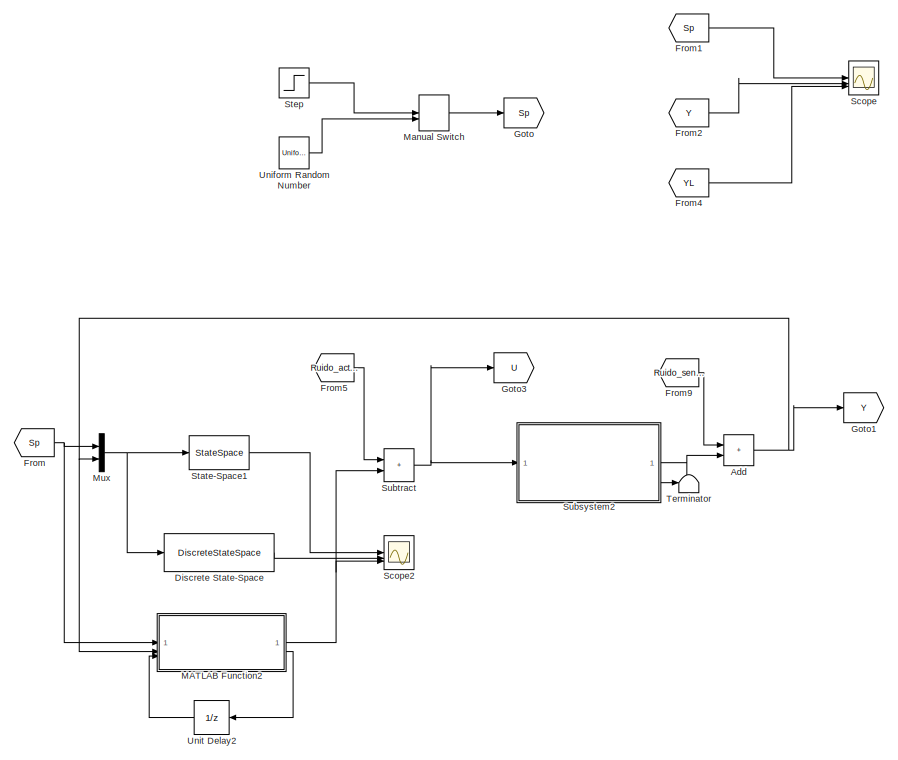
[diagram: Seg. Estados 2DOF Discreto - part 1/2, left side, full height]
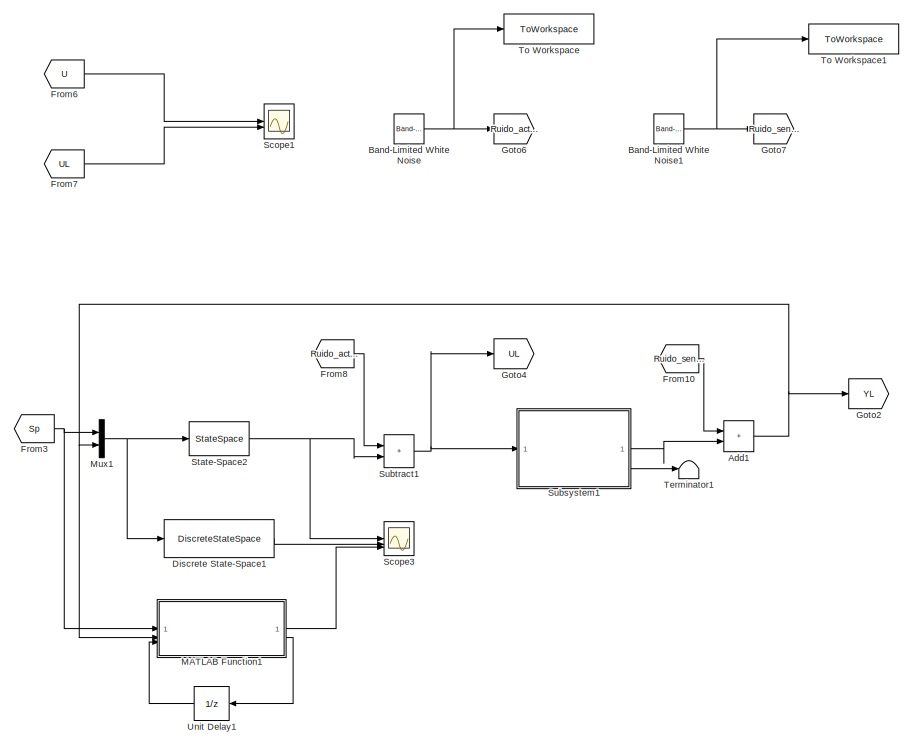
[diagram: Seg. Estados 2DOF Discreto - part 2/2, right side, full height]
BLOCK [SubSystem] Seg. Estados 2DOF Discreto
BLOCK [Sum] Seg. Estados 2DOF Discreto/Add
  IconShape = rectangular
BLOCK [Sum] Seg. Estados 2DOF Discreto/Add1
  IconShape = rectangular
BLOCK [Reference] Seg. Estados 2DOF Discreto/Band-Limited White Noise  REF=simulink/Sources/Band-Limited
White Noise
  SourceBlock = simulink/Sources/Band-Limited\nWhite Noise
  SourceType = Band-Limited White Noise.
BLOCK [Reference] Seg. Estados 2DOF Discreto/Band-Limited White Noise1  REF=simulink/Sources/Band-Limited
White Noise
  SourceBlock = simulink/Sources/Band-Limited\nWhite Noise
  SourceType = Band-Limited White Noise.
BLOCK [DiscreteStateSpace] Seg. Estados 2DOF Discreto/Discrete State-Space
  A = sys_d2.a
  B = sys_d2.b
  C = sys_d2.c
  D = sys_d2.d
  SampleTime = Tm
BLOCK [DiscreteStateSpace] Seg. Estados 2DOF Discreto/Discrete State-Space1
  A = sys_d2.a
  B = sys_d2.b
  C = sys_d2.c
  D = sys_d2.d
  SampleTime = Tm
BLOCK [From] Seg. Estados 2DOF Discreto/From
  GotoTag = Sp
BLOCK [From] Seg. Estados 2DOF Discreto/From1
  GotoTag = Sp
BLOCK [From] Seg. Estados 2DOF Discreto/From10
  GotoTag = Ruido_sensor
BLOCK [From] Seg. Estados 2DOF Discreto/From2
  GotoTag = Y
BLOCK [From] Seg. Estados 2DOF Discreto/From3
  GotoTag = Sp
BLOCK [From] Seg. Estados 2DOF Discreto/From4
  GotoTag = YL
BLOCK [From] Seg. Estados 2DOF Discreto/From5
  GotoTag = Ruido_actuador
BLOCK [From] Seg. Estados 2DOF Discreto/From6
  GotoTag = U
BLOCK [From] Seg. Estados 2DOF Discreto/From7
  GotoTag = UL
BLOCK [From] Seg. Estados 2DOF Discreto/From8
  GotoTag = Ruido_actuador
BLOCK [From] Seg. Estados 2DOF Discreto/From9
  GotoTag = Ruido_sensor
BLOCK [Goto] Seg. Estados 2DOF Discreto/Goto
  GotoTag = Sp
BLOCK [Goto] Seg. Estados 2DOF Discreto/Goto1
  GotoTag = Y
BLOCK [Goto] Seg. Estados 2DOF Discreto/Goto2
  GotoTag = YL
BLOCK [Goto] Seg. Estados 2DOF Discreto/Goto3
  GotoTag = U
BLOCK [Goto] Seg. Estados 2DOF Discreto/Goto4
  GotoTag = UL
BLOCK [Goto] Seg. Estados 2DOF Discreto/Goto6
  GotoTag = Ruido_actuador
BLOCK [Goto] Seg. Estados 2DOF Discreto/Goto7
  GotoTag = Ruido_sensor
BLOCK [SubSystem] Seg. Estados 2DOF Discreto/MATLAB Function1
  Commented = on
  ErrorFcn = Stateflow.Translate.translate
  PermitHierarchicalResolution = ExplicitOnly
  SFBlockType = MATLAB Function
  TreatAsAtomicUnit = on
BLOCK [Demux] Seg. Estados 2DOF Discreto/MATLAB Function1/ Demux 
  Outputs = 1
BLOCK [S-Function] Seg. Estados 2DOF Discreto/MATLAB Function1/ SFunction 
  EnableBusSupport = off
  FunctionName = sf_sfun
  PortCounts = [3 3]
  SFcnIsStateOwnerBlock = off
  SFunctionDeploymentMode = off
  Tag = Stateflow S-Function 8
BLOCK [Terminator] Seg. Estados 2DOF Discreto/MATLAB Function1/ Terminator 
BLOCK [Inport] Seg. Estados 2DOF Discreto/MATLAB Function1/Con_ini
  Port = 3
BLOCK [Outport] Seg. Estados 2DOF Discreto/MATLAB Function1/Con_out
  Port = 2
  VectorParamsAs1DForOutWhenUnconnected = off
BLOCK [Inport] Seg. Estados 2DOF Discreto/MATLAB Function1/Pv
  Port = 2
BLOCK [Inport] Seg. Estados 2DOF Discreto/MATLAB Function1/Sp
BLOCK [Outport] Seg. Estados 2DOF Discreto/MATLAB Function1/u
  VectorParamsAs1DForOutWhenUnconnected = off
BLOCK [SubSystem] Seg. Estados 2DOF Discreto/MATLAB Function2
  ErrorFcn = Stateflow.Translate.translate
  PermitHierarchicalResolution = ExplicitOnly
  SFBlockType = MATLAB Function
  TreatAsAtomicUnit = on
BLOCK [Demux] Seg. Estados 2DOF Discreto/MATLAB Function2/ Demux 
  Outputs = 1
BLOCK [S-Function] Seg. Estados 2DOF Discreto/MATLAB Function2/ SFunction 
  EnableBusSupport = on
  FunctionName = sf_sfun
  PortCounts = [3 3]
  SFcnIsStateOwnerBlock = off
  SFunctionDeploymentMode = off
  Tag = Stateflow S-Function 7
BLOCK [Terminator] Seg. Estados 2DOF Discreto/MATLAB Function2/ Terminator 
BLOCK [Inport] Seg. Estados 2DOF Discreto/MATLAB Function2/Con_ini
  Port = 3
BLOCK [Outport] Seg. Estados 2DOF Discreto/MATLAB Function2/Con_out
  Port = 2
  VectorParamsAs1DForOutWhenUnconnected = off
BLOCK [Inport] Seg. Estados 2DOF Discreto/MATLAB Function2/Pv
  Port = 2
BLOCK [Inport] Seg. Estados 2DOF Discreto/MATLAB Function2/Sp
BLOCK [Outport] Seg. Estados 2DOF Discreto/MATLAB Function2/u
  VectorParamsAs1DForOutWhenUnconnected = off
BLOCK [ManualSwitch] Seg. Estados 2DOF Discreto/Manual Switch
  CurrentSetting = 0
BLOCK [Mux] Seg. Estados 2DOF Discreto/Mux
  DisplayOption = bar
  Inputs = 2
BLOCK [Mux] Seg. Estados 2DOF Discreto/Mux1
  DisplayOption = bar
  Inputs = 2
BLOCK [Scope] Seg. Estados 2DOF Discreto/Scope
  Floating = off
  NumInputPorts = 3
  ScopeSpecificationString = Simulink.scopes.TimeScopeBlockCfg('CurrentConfiguration', extmgr.ConfigurationSet(extmgr.Configuration('Core','General UI',true,'FigureColor',[1 1 1]),extmgr.Configuration('Core','Source UI',true),extmgr.Configuration('Sources','WiredSimulink',true,'DataLoggingVariableName','ScopeData2'),extmgr.Configuration('Visuals','Time Domain',true,'SerializedDisplays',{struct('MinYLimReal','-2.66256','MaxYLi...<+2476ch>
BLOCK [Scope] Seg. Estados 2DOF Discreto/Scope1
  Floating = off
  NumInputPorts = 2
  ScopeSpecificationString = Simulink.scopes.TimeScopeBlockCfg('CurrentConfiguration', extmgr.ConfigurationSet(extmgr.Configuration('Core','General UI',true,'FigureColor',[1 1 1]),extmgr.Configuration('Core','Source UI',true),extmgr.Configuration('Sources','WiredSimulink',true,'DataLoggingVariableName','ScopeData3'),extmgr.Configuration('Visuals','Time Domain',true,'SerializedDisplays',{struct('MinYLimReal','-53.07095','MaxYL...<+2473ch>
BLOCK [Scope] Seg. Estados 2DOF Discreto/Scope2
  Floating = off
  NumInputPorts = 3
  ScopeSpecificationString = Simulink.scopes.TimeScopeBlockCfg('CurrentConfiguration', extmgr.ConfigurationSet(extmgr.Configuration('Core','General UI',true,'FigureColor',[1 1 1]),extmgr.Configuration('Core','Source UI',true),extmgr.Configuration('Sources','WiredSimulink',true,'DataLoggingVariableName','ScopeData1'),extmgr.Configuration('Visuals','Time Domain',true,'SerializedDisplays',{struct('MinYLimReal','-45.83697','MaxYL...<+4168ch>
BLOCK [Scope] Seg. Estados 2DOF Discreto/Scope3
  Floating = off
  NumInputPorts = 3
  ScopeSpecificationString = Simulink.scopes.TimeScopeBlockCfg('CurrentConfiguration', extmgr.ConfigurationSet(extmgr.Configuration('Core','General UI',true,'FigureColor',[1 1 1]),extmgr.Configuration('Core','Source UI',true),extmgr.Configuration('Sources','WiredSimulink',true,'DataLoggingVariableName','ScopeData6'),extmgr.Configuration('Visuals','Time Domain',true,'SerializedDisplays',{struct('MinYLimReal','-2.53233','MaxYLi...<+4300ch>
BLOCK [StateSpace] Seg. Estados 2DOF Discreto/State-Space1
  A = Ac_2
  B = Bc_2
  C = Cc_2
  D = Dc_2
  InitialCondition = 0
BLOCK [StateSpace] Seg. Estados 2DOF Discreto/State-Space2
  A = Ac_2
  B = Bc_2
  C = Cc_2
  D = Dc_2
  InitialCondition = 0
BLOCK [Step] Seg. Estados 2DOF Discreto/Step
  After = 0
  SampleTime = 0
  Time = 0
BLOCK [SubSystem] Seg. Estados 2DOF Discreto/Subsystem1
BLOCK [Sum] Seg. Estados 2DOF Discreto/Subsystem1/Add
  IconShape = rectangular
BLOCK [Sum] Seg. Estados 2DOF Discreto/Subsystem1/Add1
  IconShape = rectangular
BLOCK [Outport] Seg. Estados 2DOF Discreto/Subsystem1/Est_L
  Port = 2
BLOCK [Gain] Seg. Estados 2DOF Discreto/Subsystem1/Gain
  Gain = CL
  Multiplication = Matrix(K*u)
BLOCK [Gain] Seg. Estados 2DOF Discreto/Subsystem1/Gain1
  Gain = AL
  Multiplication = Matrix(K*u)
  NameLocation = top
BLOCK [Gain] Seg. Estados 2DOF Discreto/Subsystem1/Gain2
  Gain = DL
  Multiplication = Matrix(K*u)
BLOCK [Gain] Seg. Estados 2DOF Discreto/Subsystem1/Gain3
  Gain = BL
  Multiplication = Matrix(K*u)
BLOCK [Inport] Seg. Estados 2DOF Discreto/Subsystem1/In1
BLOCK [Integrator] Seg. Estados 2DOF Discreto/Subsystem1/Integrator
BLOCK [Outport] Seg. Estados 2DOF Discreto/Subsystem1/YL
BLOCK [SubSystem] Seg. Estados 2DOF Discreto/Subsystem2
BLOCK [Sum] Seg. Estados 2DOF Discreto/Subsystem2/Add
  IconShape = rectangular
BLOCK [Constant] Seg. Estados 2DOF Discreto/Subsystem2/Constant
  Value = [Ro,Lo,Kio, Kvo, Jmo, Jlo, Bmo, Blo, no, go, do, mo]
BLOCK [Constant] Seg. Estados 2DOF Discreto/Subsystem2/Constant1
  Value = Vin0
BLOCK [Constant] Seg. Estados 2DOF Discreto/Subsystem2/Constant2
  Value = [X10; X20;X30]
BLOCK [Outport] Seg. Estados 2DOF Discreto/Subsystem2/Est
  Port = 2
BLOCK [Gain] Seg. Estados 2DOF Discreto/Subsystem2/Gain1
  Gain = CL
  Multiplication = Matrix(K*u)
BLOCK [Inport] Seg. Estados 2DOF Discreto/Subsystem2/Input
BLOCK [Integrator] Seg. Estados 2DOF Discreto/Subsystem2/Integrator
  InitialCondition = [X10; X20;X30]
BLOCK [SubSystem] Seg. Estados 2DOF Discreto/Subsystem2/MATLAB Function
  ErrorFcn = Stateflow.Translate.translate
  PermitHierarchicalResolution = ExplicitOnly
  SFBlockType = MATLAB Function
  TreatAsAtomicUnit = on
BLOCK [Demux] Seg. Estados 2DOF Discreto/Subsystem2/MATLAB Function/ Demux 
  Outputs = 1
BLOCK [S-Function] Seg. Estados 2DOF Discreto/Subsystem2/MATLAB Function/ SFunction 
  EnableBusSupport = on
  FunctionName = sf_sfun
  PortCounts = [3 2]
  SFcnIsStateOwnerBlock = off
  SFunctionDeploymentMode = off
  Tag = Stateflow S-Function 6
BLOCK [Terminator] Seg. Estados 2DOF Discreto/Subsystem2/MATLAB Function/ Terminator 
BLOCK [Inport] Seg. Estados 2DOF Discreto/Subsystem2/MATLAB Function/PWM
  Port = 2
BLOCK [Outport] Seg. Estados 2DOF Discreto/Subsystem2/MATLAB Function/dx
BLOCK [Inport] Seg. Estados 2DOF Discreto/Subsystem2/MATLAB Function/parametros
  Port = 3
BLOCK [Inport] Seg. Estados 2DOF Discreto/Subsystem2/MATLAB Function/x
BLOCK [Outport] Seg. Estados 2DOF Discreto/Subsystem2/Output
BLOCK [Sum] Seg. Estados 2DOF Discreto/Subsystem2/Subtract1
  IconShape = rectangular
  Inputs = +-
BLOCK [Sum] Seg. Estados 2DOF Discreto/Subtract
  IconShape = rectangular
BLOCK [Sum] Seg. Estados 2DOF Discreto/Subtract1
  IconShape = rectangular
BLOCK [Terminator] Seg. Estados 2DOF Discreto/Terminator
BLOCK [Terminator] Seg. Estados 2DOF Discreto/Terminator1
BLOCK [ToWorkspace] Seg. Estados 2DOF Discreto/To Workspace
  FixptAsFi = on
  MaxDataPoints = inf
  SampleTime = -1
  VariableName = Ruido_actuador
BLOCK [ToWorkspace] Seg. Estados 2DOF Discreto/To Workspace1
  FixptAsFi = on
  MaxDataPoints = inf
  SampleTime = -1
  VariableName = Ruido_sensor
BLOCK [UniformRandomNumber] Seg. Estados 2DOF Discreto/Uniform Random Number
  Maximum = 65*(pi/180)
  Minimum = -65*(pi/180)
  SampleTime = 10
BLOCK [UnitDelay] Seg. Estados 2DOF Discreto/Unit Delay1
  Commented = on
  HasFrameUpgradeWarning = on
  InitialCondition = zeros(8,1)
  NameLocation = top
  SampleTime = Tm
BLOCK [UnitDelay] Seg. Estados 2DOF Discreto/Unit Delay2
  HasFrameUpgradeWarning = on
  InitialCondition = zeros(5,1)
  NameLocation = top
  SampleTime = Tm
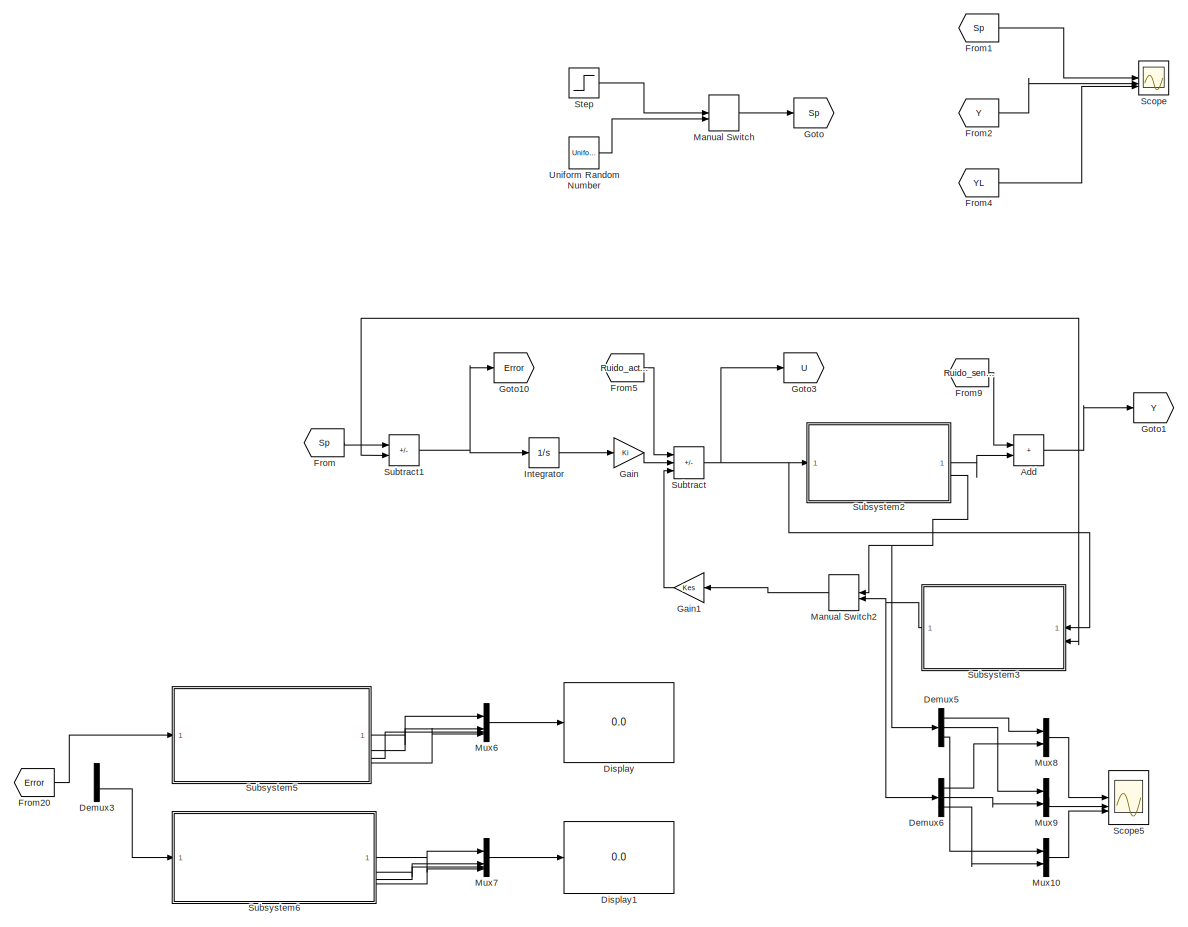
[diagram: Seg. Estados Desacop- - part 1/2, left side, full height]
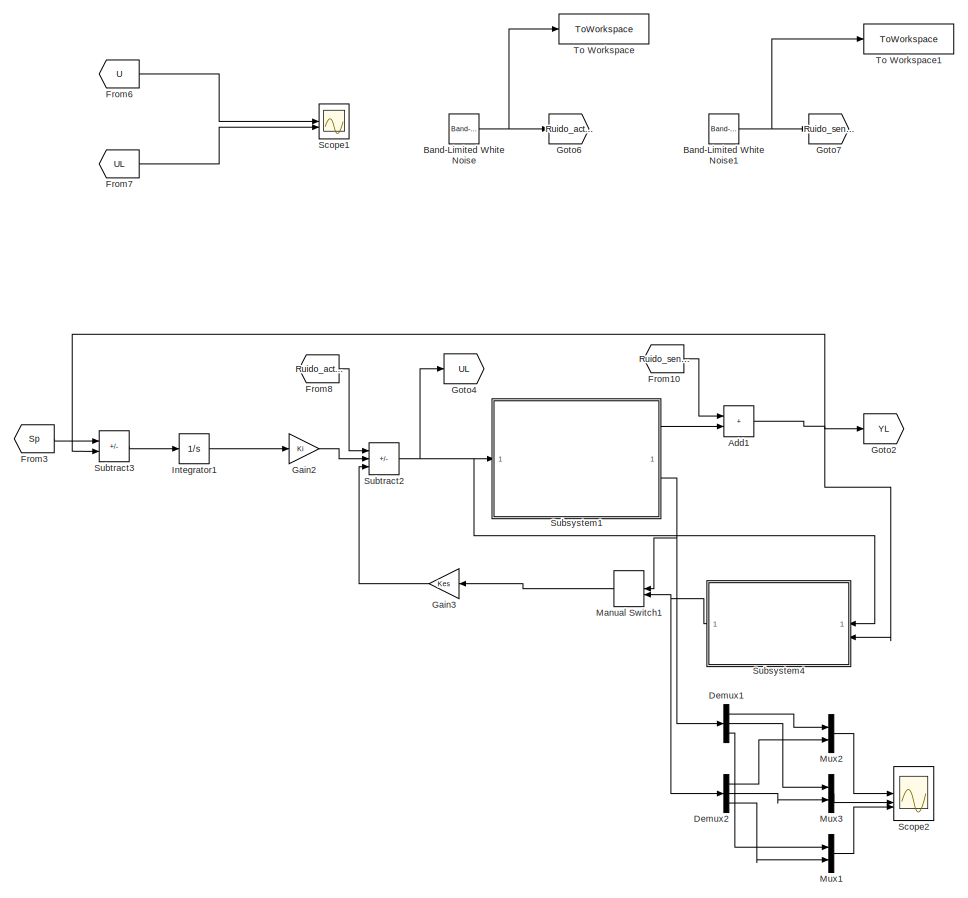
[diagram: Seg. Estados Desacop- - part 2/2, right side, full height]
BLOCK [SubSystem] Seg. Estados Desacop-
  Commented = on
BLOCK [Sum] Seg. Estados Desacop-/Add
  IconShape = rectangular
BLOCK [Sum] Seg. Estados Desacop-/Add1
  IconShape = rectangular
BLOCK [Reference] Seg. Estados Desacop-/Band-Limited White Noise  REF=simulink/Sources/Band-Limited
White Noise
  SourceBlock = simulink/Sources/Band-Limited\nWhite Noise
  SourceType = Band-Limited White Noise.
BLOCK [Reference] Seg. Estados Desacop-/Band-Limited White Noise1  REF=simulink/Sources/Band-Limited
White Noise
  SourceBlock = simulink/Sources/Band-Limited\nWhite Noise
  SourceType = Band-Limited White Noise.
BLOCK [Demux] Seg. Estados Desacop-/Demux1
  Outputs = 3
BLOCK [Demux] Seg. Estados Desacop-/Demux2
  Outputs = 3
BLOCK [Demux] Seg. Estados Desacop-/Demux3
  Commented = on
  Outputs = 2
BLOCK [Demux] Seg. Estados Desacop-/Demux5
  Outputs = 3
BLOCK [Demux] Seg. Estados Desacop-/Demux6
  Outputs = 3
BLOCK [Display] Seg. Estados Desacop-/Display
  Decimation = 1
BLOCK [Display] Seg. Estados Desacop-/Display1
  Commented = on
  Decimation = 1
BLOCK [From] Seg. Estados Desacop-/From
  GotoTag = Sp
BLOCK [From] Seg. Estados Desacop-/From1
  GotoTag = Sp
BLOCK [From] Seg. Estados Desacop-/From10
  GotoTag = Ruido_sensor
BLOCK [From] Seg. Estados Desacop-/From2
  GotoTag = Y
BLOCK [From] Seg. Estados Desacop-/From20
  GotoTag = Error
BLOCK [From] Seg. Estados Desacop-/From3
  GotoTag = Sp
BLOCK [From] Seg. Estados Desacop-/From4
  GotoTag = YL
BLOCK [From] Seg. Estados Desacop-/From5
  GotoTag = Ruido_actuador
BLOCK [From] Seg. Estados Desacop-/From6
  GotoTag = U
BLOCK [From] Seg. Estados Desacop-/From7
  GotoTag = UL
BLOCK [From] Seg. Estados Desacop-/From8
  GotoTag = Ruido_actuador
BLOCK [From] Seg. Estados Desacop-/From9
  GotoTag = Ruido_sensor
BLOCK [Gain] Seg. Estados Desacop-/Gain
  Gain = Ki
  Multiplication = Matrix(K*u)
BLOCK [Gain] Seg. Estados Desacop-/Gain1
  Gain = Kes
  Multiplication = Matrix(K*u)
  NameLocation = top
BLOCK [Gain] Seg. Estados Desacop-/Gain2
  Gain = Ki
  Multiplication = Matrix(K*u)
BLOCK [Gain] Seg. Estados Desacop-/Gain3
  Gain = Kes
  Multiplication = Matrix(K*u)
  NameLocation = top
BLOCK [Goto] Seg. Estados Desacop-/Goto
  GotoTag = Sp
BLOCK [Goto] Seg. Estados Desacop-/Goto1
  GotoTag = Y
BLOCK [Goto] Seg. Estados Desacop-/Goto10
  GotoTag = Error
BLOCK [Goto] Seg. Estados Desacop-/Goto2
  GotoTag = YL
BLOCK [Goto] Seg. Estados Desacop-/Goto3
  GotoTag = U
BLOCK [Goto] Seg. Estados Desacop-/Goto4
  GotoTag = UL
BLOCK [Goto] Seg. Estados Desacop-/Goto6
  GotoTag = Ruido_actuador
BLOCK [Goto] Seg. Estados Desacop-/Goto7
  GotoTag = Ruido_sensor
BLOCK [Integrator] Seg. Estados Desacop-/Integrator
BLOCK [Integrator] Seg. Estados Desacop-/Integrator1
BLOCK [ManualSwitch] Seg. Estados Desacop-/Manual Switch
  CurrentSetting = 0
BLOCK [ManualSwitch] Seg. Estados Desacop-/Manual Switch1
  NameLocation = top
BLOCK [ManualSwitch] Seg. Estados Desacop-/Manual Switch2
  NameLocation = top
BLOCK [Mux] Seg. Estados Desacop-/Mux1
  DisplayOption = bar
  Inputs = 2
BLOCK [Mux] Seg. Estados Desacop-/Mux10
  DisplayOption = bar
  Inputs = 2
BLOCK [Mux] Seg. Estados Desacop-/Mux2
  DisplayOption = bar
  Inputs = 2
BLOCK [Mux] Seg. Estados Desacop-/Mux3
  DisplayOption = bar
  Inputs = 2
BLOCK [Mux] Seg. Estados Desacop-/Mux6
  DisplayOption = bar
BLOCK [Mux] Seg. Estados Desacop-/Mux7
  Commented = on
  DisplayOption = bar
BLOCK [Mux] Seg. Estados Desacop-/Mux8
  DisplayOption = bar
  Inputs = 2
BLOCK [Mux] Seg. Estados Desacop-/Mux9
  DisplayOption = bar
  Inputs = 2
BLOCK [Scope] Seg. Estados Desacop-/Scope
  Floating = off
  NumInputPorts = 3
  ScopeSpecificationString = Simulink.scopes.TimeScopeBlockCfg('CurrentConfiguration', extmgr.ConfigurationSet(extmgr.Configuration('Core','General UI',true,'FigureColor',[1 1 1]),extmgr.Configuration('Core','Source UI',true),extmgr.Configuration('Sources','WiredSimulink',true,'DataLoggingVariableName','ScopeData2'),extmgr.Configuration('Visuals','Time Domain',true,'SerializedDisplays',{struct('MinYLimReal','-2.66256','MaxYLi...<+2476ch>
BLOCK [Scope] Seg. Estados Desacop-/Scope1
  Floating = off
  NumInputPorts = 2
  ScopeSpecificationString = Simulink.scopes.TimeScopeBlockCfg('CurrentConfiguration', extmgr.ConfigurationSet(extmgr.Configuration('Core','General UI',true,'FigureColor',[1 1 1]),extmgr.Configuration('Core','Source UI',true),extmgr.Configuration('Sources','WiredSimulink',true,'DataLoggingVariableName','ScopeData3'),extmgr.Configuration('Visuals','Time Domain',true,'SerializedDisplays',{struct('MinYLimReal','-53.07095','MaxYL...<+2473ch>
BLOCK [Scope] Seg. Estados Desacop-/Scope2
  Floating = off
  NumInputPorts = 3
  ScopeSpecificationString = Simulink.scopes.TimeScopeBlockCfg('CurrentConfiguration', extmgr.ConfigurationSet(extmgr.Configuration('Core','General UI',true,'FigureColor',[1 1 1]),extmgr.Configuration('Core','Source UI',true),extmgr.Configuration('Sources','WiredSimulink',true,'DataLoggingVariableName','ScopeData5'),extmgr.Configuration('Visuals','Time Domain',true,'SerializedDisplays',{struct('MinYLimReal','-0.70061','MaxYLi...<+3904ch>
BLOCK [Scope] Seg. Estados Desacop-/Scope5
  Floating = off
  NumInputPorts = 3
  ScopeSpecificationString = Simulink.scopes.TimeScopeBlockCfg('CurrentConfiguration', extmgr.ConfigurationSet(extmgr.Configuration('Core','General UI',true,'FigureColor',[1 1 1]),extmgr.Configuration('Core','Source UI',true),extmgr.Configuration('Sources','WiredSimulink',true,'DataLoggingVariableName','ScopeData4'),extmgr.Configuration('Visuals','Time Domain',true,'SerializedDisplays',{struct('MinYLimReal','-0.63414','MaxYLi...<+3962ch>
BLOCK [Step] Seg. Estados Desacop-/Step
  After = 0
  SampleTime = 0
  Time = 0
BLOCK [SubSystem] Seg. Estados Desacop-/Subsystem1
BLOCK [Sum] Seg. Estados Desacop-/Subsystem1/Add
  IconShape = rectangular
BLOCK [Sum] Seg. Estados Desacop-/Subsystem1/Add1
  IconShape = rectangular
BLOCK [Outport] Seg. Estados Desacop-/Subsystem1/Est_L
  Port = 2
BLOCK [Gain] Seg. Estados Desacop-/Subsystem1/Gain
  Gain = CL
  Multiplication = Matrix(K*u)
BLOCK [Gain] Seg. Estados Desacop-/Subsystem1/Gain1
  Gain = AL
  Multiplication = Matrix(K*u)
  NameLocation = top
BLOCK [Gain] Seg. Estados Desacop-/Subsystem1/Gain2
  Gain = DL
  Multiplication = Matrix(K*u)
BLOCK [Gain] Seg. Estados Desacop-/Subsystem1/Gain3
  Gain = BL
  Multiplication = Matrix(K*u)
BLOCK [Inport] Seg. Estados Desacop-/Subsystem1/In1
BLOCK [Integrator] Seg. Estados Desacop-/Subsystem1/Integrator
BLOCK [Outport] Seg. Estados Desacop-/Subsystem1/YL
BLOCK [SubSystem] Seg. Estados Desacop-/Subsystem2
BLOCK [Sum] Seg. Estados Desacop-/Subsystem2/Add
  IconShape = rectangular
BLOCK [Constant] Seg. Estados Desacop-/Subsystem2/Constant
  Value = [Ro,Lo,Kio, Kvo, Jmo, Jlo, Bmo, Blo, no, go, do, mo]
BLOCK [Constant] Seg. Estados Desacop-/Subsystem2/Constant1
  Value = Vin0
BLOCK [Constant] Seg. Estados Desacop-/Subsystem2/Constant2
  Value = [X10; X20;X30]
BLOCK [Outport] Seg. Estados Desacop-/Subsystem2/Est
  Port = 2
BLOCK [Gain] Seg. Estados Desacop-/Subsystem2/Gain1
  Gain = CL
  Multiplication = Matrix(K*u)
BLOCK [Inport] Seg. Estados Desacop-/Subsystem2/Input
BLOCK [Integrator] Seg. Estados Desacop-/Subsystem2/Integrator
  InitialCondition = [X10; X20;X30]
BLOCK [SubSystem] Seg. Estados Desacop-/Subsystem2/MATLAB Function
  ErrorFcn = Stateflow.Translate.translate
  PermitHierarchicalResolution = ExplicitOnly
  SFBlockType = MATLAB Function
  TreatAsAtomicUnit = on
BLOCK [Demux] Seg. Estados Desacop-/Subsystem2/MATLAB Function/ Demux 
  Outputs = 1
BLOCK [S-Function] Seg. Estados Desacop-/Subsystem2/MATLAB Function/ SFunction 
  EnableBusSupport = on
  FunctionName = sf_sfun
  PortCounts = [3 2]
  SFcnIsStateOwnerBlock = off
  SFunctionDeploymentMode = off
  Tag = Stateflow S-Function 5
BLOCK [Terminator] Seg. Estados Desacop-/Subsystem2/MATLAB Function/ Terminator 
BLOCK [Inport] Seg. Estados Desacop-/Subsystem2/MATLAB Function/PWM
  Port = 2
BLOCK [Outport] Seg. Estados Desacop-/Subsystem2/MATLAB Function/dx
BLOCK [Inport] Seg. Estados Desacop-/Subsystem2/MATLAB Function/parametros
  Port = 3
BLOCK [Inport] Seg. Estados Desacop-/Subsystem2/MATLAB Function/x
BLOCK [Outport] Seg. Estados Desacop-/Subsystem2/Output
BLOCK [Sum] Seg. Estados Desacop-/Subsystem2/Subtract1
  IconShape = rectangular
  Inputs = +-
BLOCK [SubSystem] Seg. Estados Desacop-/Subsystem3
  NameLocation = top
BLOCK [Sum] Seg. Estados Desacop-/Subsystem3/Add6
  IconShape = rectangular
BLOCK [Sum] Seg. Estados Desacop-/Subsystem3/Add7
  IconShape = rectangular
BLOCK [Sum] Seg. Estados Desacop-/Subsystem3/Add8
  IconShape = rectangular
BLOCK [Sum] Seg. Estados Desacop-/Subsystem3/Add9
  IconShape = rectangular
  Inputs = +-
BLOCK [Outport] Seg. Estados Desacop-/Subsystem3/Estados
  VectorParamsAs1DForOutWhenUnconnected = off
BLOCK [Gain] Seg. Estados Desacop-/Subsystem3/Gain10
  Gain = CL
  Multiplication = Matrix(K*u)
BLOCK [Gain] Seg. Estados Desacop-/Subsystem3/Gain11
  Gain = DL
  Multiplication = Matrix(K*u)
BLOCK [Gain] Seg. Estados Desacop-/Subsystem3/Gain13
  Gain = L
  Multiplication = Matrix(K*u)
  NameLocation = top
BLOCK [Gain] Seg. Estados Desacop-/Subsystem3/Gain8
  Gain = BL
  Multiplication = Matrix(K*u)
BLOCK [Gain] Seg. Estados Desacop-/Subsystem3/Gain9
  Gain = AL
  Multiplication = Matrix(K*u)
  NameLocation = top
BLOCK [Integrator] Seg. Estados Desacop-/Subsystem3/Integrator3
BLOCK [Inport] Seg. Estados Desacop-/Subsystem3/U
BLOCK [Inport] Seg. Estados Desacop-/Subsystem3/Y
  Port = 2
BLOCK [SubSystem] Seg. Estados Desacop-/Subsystem4
  NameLocation = top
BLOCK [Sum] Seg. Estados Desacop-/Subsystem4/Add6
  IconShape = rectangular
BLOCK [Sum] Seg. Estados Desacop-/Subsystem4/Add7
  IconShape = rectangular
BLOCK [Sum] Seg. Estados Desacop-/Subsystem4/Add8
  IconShape = rectangular
BLOCK [Sum] Seg. Estados Desacop-/Subsystem4/Add9
  IconShape = rectangular
  Inputs = +-
BLOCK [Outport] Seg. Estados Desacop-/Subsystem4/Estados
  VectorParamsAs1DForOutWhenUnconnected = off
BLOCK [Gain] Seg. Estados Desacop-/Subsystem4/Gain10
  Gain = CL
  Multiplication = Matrix(K*u)
BLOCK [Gain] Seg. Estados Desacop-/Subsystem4/Gain11
  Gain = DL
  Multiplication = Matrix(K*u)
BLOCK [Gain] Seg. Estados Desacop-/Subsystem4/Gain13
  Gain = L
  Multiplication = Matrix(K*u)
  NameLocation = top
BLOCK [Gain] Seg. Estados Desacop-/Subsystem4/Gain8
  Gain = BL
  Multiplication = Matrix(K*u)
BLOCK [Gain] Seg. Estados Desacop-/Subsystem4/Gain9
  Gain = AL
  Multiplication = Matrix(K*u)
  NameLocation = top
BLOCK [Integrator] Seg. Estados Desacop-/Subsystem4/Integrator3
BLOCK [Inport] Seg. Estados Desacop-/Subsystem4/U
BLOCK [Inport] Seg. Estados Desacop-/Subsystem4/Y
  Port = 2
BLOCK [SubSystem] Seg. Estados Desacop-/Subsystem5
BLOCK [Abs] Seg. Estados Desacop-/Subsystem5/Abs
  SaturateOnIntegerOverflow = off
BLOCK [Clock] Seg. Estados Desacop-/Subsystem5/Clock
  Decimation = 1
BLOCK [Clock] Seg. Estados Desacop-/Subsystem5/Clock1
  Decimation = 1
BLOCK [Outport] Seg. Estados Desacop-/Subsystem5/IAE
  VectorParamsAs1DForOutWhenUnconnected = off
BLOCK [Outport] Seg. Estados Desacop-/Subsystem5/ISE
  Port = 3
  VectorParamsAs1DForOutWhenUnconnected = off
BLOCK [Outport] Seg. Estados Desacop-/Subsystem5/ITAE
  Port = 2
  VectorParamsAs1DForOutWhenUnconnected = off
BLOCK [Outport] Seg. Estados Desacop-/Subsystem5/ITSE
  Port = 4
  VectorParamsAs1DForOutWhenUnconnected = off
BLOCK [Inport] Seg. Estados Desacop-/Subsystem5/In1
BLOCK [Integrator] Seg. Estados Desacop-/Subsystem5/Integrator3
BLOCK [Integrator] Seg. Estados Desacop-/Subsystem5/Integrator4
BLOCK [Integrator] Seg. Estados Desacop-/Subsystem5/Integrator5
BLOCK [Integrator] Seg. Estados Desacop-/Subsystem5/Integrator6
BLOCK [Math] Seg. Estados Desacop-/Subsystem5/Power
  Operator = magnitude^2
  SignedPower = on
BLOCK [Product] Seg. Estados Desacop-/Subsystem5/Product
BLOCK [Product] Seg. Estados Desacop-/Subsystem5/Product1
BLOCK [SubSystem] Seg. Estados Desacop-/Subsystem6
  Commented = on
BLOCK [Abs] Seg. Estados Desacop-/Subsystem6/Abs
  SaturateOnIntegerOverflow = off
BLOCK [Clock] Seg. Estados Desacop-/Subsystem6/Clock
  Decimation = 1
BLOCK [Clock] Seg. Estados Desacop-/Subsystem6/Clock1
  Decimation = 1
BLOCK [Outport] Seg. Estados Desacop-/Subsystem6/IAE
  VectorParamsAs1DForOutWhenUnconnected = off
BLOCK [Outport] Seg. Estados Desacop-/Subsystem6/ISE
  Port = 3
  VectorParamsAs1DForOutWhenUnconnected = off
BLOCK [Outport] Seg. Estados Desacop-/Subsystem6/ITAE
  Port = 2
  VectorParamsAs1DForOutWhenUnconnected = off
BLOCK [Outport] Seg. Estados Desacop-/Subsystem6/ITSE
  Port = 4
  VectorParamsAs1DForOutWhenUnconnected = off
BLOCK [Inport] Seg. Estados Desacop-/Subsystem6/In1
BLOCK [Integrator] Seg. Estados Desacop-/Subsystem6/Integrator3
BLOCK [Integrator] Seg. Estados Desacop-/Subsystem6/Integrator4
BLOCK [Integrator] Seg. Estados Desacop-/Subsystem6/Integrator5
BLOCK [Integrator] Seg. Estados Desacop-/Subsystem6/Integrator6
BLOCK [Math] Seg. Estados Desacop-/Subsystem6/Power
  Operator = magnitude^2
  SignedPower = on
BLOCK [Product] Seg. Estados Desacop-/Subsystem6/Product
BLOCK [Product] Seg. Estados Desacop-/Subsystem6/Product1
BLOCK [Scope] Seg. Estados Desacop-/Subsystem6/Scope3
  Floating = off
  NumInputPorts = 4
  ScopeSpecificationString = Simulink.scopes.TimeScopeBlockCfg('CurrentConfiguration', extmgr.ConfigurationSet(extmgr.Configuration('Core','General UI',true,'FigureColor',[1 1 1]),extmgr.Configuration('Core','Source UI',true),extmgr.Configuration('Sources','WiredSimulink',true,'DataLoggingVariableName','ScopeData4'),extmgr.Configuration('Visuals','Time Domain',true,'SerializedDisplays',{struct('MinYLimReal','-0.08686','MaxYLi...<+3629ch>
BLOCK [Sum] Seg. Estados Desacop-/Subtract
  IconShape = rectangular
  Inputs = ++-
BLOCK [Sum] Seg. Estados Desacop-/Subtract1
  IconShape = rectangular
  Inputs = +-
BLOCK [Sum] Seg. Estados Desacop-/Subtract2
  IconShape = rectangular
  Inputs = ++-
BLOCK [Sum] Seg. Estados Desacop-/Subtract3
  IconShape = rectangular
  Inputs = +-
BLOCK [ToWorkspace] Seg. Estados Desacop-/To Workspace
  FixptAsFi = on
  MaxDataPoints = inf
  SampleTime = -1
  VariableName = Ruido_actuador
BLOCK [ToWorkspace] Seg. Estados Desacop-/To Workspace1
  FixptAsFi = on
  MaxDataPoints = inf
  SampleTime = -1
  VariableName = Ruido_sensor
BLOCK [UniformRandomNumber] Seg. Estados Desacop-/Uniform Random Number
  Maximum = 65*(pi/180)
  Minimum = -65*(pi/180)
  SampleTime = 10
BLOCK [From] Seg. Estados/From
  GotoTag = Sp
BLOCK [From] Seg. Estados/From1
  GotoTag = Sp
BLOCK [From] Seg. Estados/From2
  GotoTag = Y
BLOCK [From] Seg. Estados/From3
  GotoTag = Sp
BLOCK [From] Seg. Estados/From4
  GotoTag = YL
BLOCK [From] Seg. Estados/From6
  GotoTag = U
BLOCK [From] Seg. Estados/From7
  GotoTag = UL
BLOCK [Gain] Seg. Estados/Gain
  Gain = Ki
  Multiplication = Matrix(K*u)
BLOCK [Gain] Seg. Estados/Gain1
  Gain = Kes
  Multiplication = Matrix(K*u)
  NameLocation = top
BLOCK [Gain] Seg. Estados/Gain2
  Gain = Ki
  Multiplication = Matrix(K*u)
BLOCK [Gain] Seg. Estados/Gain3
  Gain = Kes
  Multiplication = Matrix(K*u)
  NameLocation = top
BLOCK [Goto] Seg. Estados/Goto
  GotoTag = Sp
BLOCK [Goto] Seg. Estados/Goto1
  GotoTag = Y
BLOCK [Goto] Seg. Estados/Goto2
  GotoTag = YL
BLOCK [Goto] Seg. Estados/Goto3
  GotoTag = U
BLOCK [Goto] Seg. Estados/Goto4
  GotoTag = UL
BLOCK [Integrator] Seg. Estados/Integrator
BLOCK [Integrator] Seg. Estados/Integrator1
BLOCK [ManualSwitch] Seg. Estados/Manual Switch
  CurrentSetting = 0
BLOCK [Scope] Seg. Estados/Scope
  Floating = off
  NumInputPorts = 3
  ScopeSpecificationString = Simulink.scopes.TimeScopeBlockCfg('CurrentConfiguration', extmgr.ConfigurationSet(extmgr.Configuration('Core','General UI',true,'FigureColor',[1 1 1]),extmgr.Configuration('Core','Source UI',true),extmgr.Configuration('Sources','WiredSimulink',true,'DataLoggingVariableName','ScopeData8'),extmgr.Configuration('Visuals','Time Domain',true,'SerializedDisplays',{struct('MinYLimReal','-2.66256','MaxYLi...<+2476ch>
BLOCK [Scope] Seg. Estados/Scope1
  Floating = off
  NumInputPorts = 2
  ScopeSpecificationString = Simulink.scopes.TimeScopeBlockCfg('CurrentConfiguration', extmgr.ConfigurationSet(extmgr.Configuration('Core','General UI',true,'FigureColor',[1 1 1]),extmgr.Configuration('Core','Source UI',true),extmgr.Configuration('Sources','WiredSimulink',true,'DataLoggingVariableName','ScopeData9'),extmgr.Configuration('Visuals','Time Domain',true,'SerializedDisplays',{struct('MinYLimReal','-19.01074','MaxYL...<+2473ch>
BLOCK [Step] Seg. Estados/Step
  After = 0
  SampleTime = 0
  Time = 0
BLOCK [SubSystem] Seg. Estados/Subsystem1
BLOCK [Sum] Seg. Estados/Subsystem1/Add
  IconShape = rectangular
BLOCK [Sum] Seg. Estados/Subsystem1/Add1
  IconShape = rectangular
BLOCK [Outport] Seg. Estados/Subsystem1/Est_L
  Port = 2
BLOCK [Gain] Seg. Estados/Subsystem1/Gain
  Gain = CL
  Multiplication = Matrix(K*u)
BLOCK [Gain] Seg. Estados/Subsystem1/Gain1
  Gain = AL
  Multiplication = Matrix(K*u)
  NameLocation = top
BLOCK [Gain] Seg. Estados/Subsystem1/Gain2
  Gain = DL
  Multiplication = Matrix(K*u)
BLOCK [Gain] Seg. Estados/Subsystem1/Gain3
  Gain = BL
  Multiplication = Matrix(K*u)
BLOCK [Inport] Seg. Estados/Subsystem1/In1
BLOCK [Integrator] Seg. Estados/Subsystem1/Integrator
BLOCK [Outport] Seg. Estados/Subsystem1/YL
BLOCK [SubSystem] Seg. Estados/Subsystem2
BLOCK [Sum] Seg. Estados/Subsystem2/Add
  IconShape = rectangular
BLOCK [Constant] Seg. Estados/Subsystem2/Constant
  Value = [Ro,Lo,Kio, Kvo, Jmo, Jlo, Bmo, Blo, no, go, do, mo]
BLOCK [Constant] Seg. Estados/Subsystem2/Constant1
  Value = Vin0
BLOCK [Constant] Seg. Estados/Subsystem2/Constant2
  Value = [X10; X20]
BLOCK [Outport] Seg. Estados/Subsystem2/Est
  Port = 2
BLOCK [Gain] Seg. Estados/Subsystem2/Gain1
  Gain = CL
  Multiplication = Matrix(K*u)
BLOCK [Inport] Seg. Estados/Subsystem2/Input
BLOCK [Integrator] Seg. Estados/Subsystem2/Integrator
  InitialCondition = [X10; X20]
BLOCK [SubSystem] Seg. Estados/Subsystem2/MATLAB Function
  ErrorFcn = Stateflow.Translate.translate
  PermitHierarchicalResolution = ExplicitOnly
  SFBlockType = MATLAB Function
  TreatAsAtomicUnit = on
BLOCK [Demux] Seg. Estados/Subsystem2/MATLAB Function/ Demux 
  Outputs = 1
BLOCK [S-Function] Seg. Estados/Subsystem2/MATLAB Function/ SFunction 
  EnableBusSupport = off
  FunctionName = sf_sfun
  PortCounts = [3 2]
  SFcnIsStateOwnerBlock = off
  SFunctionDeploymentMode = off
  Tag = Stateflow S-Function 10
BLOCK [Terminator] Seg. Estados/Subsystem2/MATLAB Function/ Terminator 
BLOCK [Inport] Seg. Estados/Subsystem2/MATLAB Function/PWM
  Port = 2
BLOCK [Outport] Seg. Estados/Subsystem2/MATLAB Function/dx
BLOCK [Inport] Seg. Estados/Subsystem2/MATLAB Function/parametros
  Port = 3
BLOCK [Inport] Seg. Estados/Subsystem2/MATLAB Function/x
BLOCK [Outport] Seg. Estados/Subsystem2/Output
BLOCK [Sum] Seg. Estados/Subsystem2/Subtract1
  IconShape = rectangular
  Inputs = +-
BLOCK [Sum] Seg. Estados/Subtract
  IconShape = rectangular
  Inputs = +-
BLOCK [Sum] Seg. Estados/Subtract1
  IconShape = rectangular
  Inputs = +-
BLOCK [Sum] Seg. Estados/Subtract2
  IconShape = rectangular
  Inputs = +-
BLOCK [Sum] Seg. Estados/Subtract3
  IconShape = rectangular
  Inputs = +-
BLOCK [UniformRandomNumber] Seg. Estados/Uniform Random Number
  Maximum = 120*(pi/180)
  Minimum = -120*(pi/180)
  SampleTime = 10
ANNOTATION Estados Discreto: simin
ANNOTATION PID 1 DOF Discreto: simin
ANNOTATION PID 2 DOF Discreto: simin
LINE Estados Discreto/From Workspace1:1 -> Estados Discreto/Scope:2
LINE Estados Discreto/From Workspace2:1 -> Estados Discreto/Scope1:1
LINE Estados Discreto/From Workspace:1 -> Estados Discreto/Manual Switch:1
LINE Estados Discreto/From1:1 -> Estados Discreto/Scope:1
LINE Estados Discreto/From3:1 -> Estados Discreto/MATLAB Function:1
LINE Estados Discreto/From4:1 -> Estados Discreto/Scope:3
LINE Estados Discreto/From5:1 -> Estados Discreto/Scope1:3
LINE Estados Discreto/From6:1 -> Estados Discreto/Scope:4
LINE Estados Discreto/From7:1 -> Estados Discreto/Scope1:2
LINE Estados Discreto/From:1 -> Estados Discreto/MATLAB Function1:1
NET Estados Discreto/MATLAB Function1:1 -> Estados Discreto/Goto3:1, Estados Discreto/Subsystem1:1
LINE Estados Discreto/MATLAB Function1:2 -> Estados Discreto/Unit Delay1:1
NET Estados Discreto/MATLAB Function:1 -> Estados Discreto/Goto6:1, Estados Discreto/Subsystem2:1
LINE Estados Discreto/MATLAB Function:2 -> Estados Discreto/Unit Delay2:1
LINE Estados Discreto/Manual Switch:1 -> Estados Discreto/Goto:1
LINE Estados Discreto/Subsystem1/Add:1 -> Estados Discreto/Subsystem1/MATLAB Function:2
LINE Estados Discreto/Subsystem1/Constant1:1 -> Estados Discreto/Subsystem1/Add:1
LINE Estados Discreto/Subsystem1/Constant2:1 -> Estados Discreto/Subsystem1/Subtract1:2
LINE Estados Discreto/Subsystem1/Constant:1 -> Estados Discreto/Subsystem1/MATLAB Function:3
LINE Estados Discreto/Subsystem1/Gain1:1 -> Estados Discreto/Subsystem1/Output:1
LINE Estados Discreto/Subsystem1/Input:1 -> Estados Discreto/Subsystem1/Add:2
NET Estados Discreto/Subsystem1/Integrator:1 -> Estados Discreto/Subsystem1/MATLAB Function:1, Estados Discreto/Subsystem1/Subtract1:1
LINE Estados Discreto/Subsystem1/MATLAB Function:1 -> Estados Discreto/Subsystem1/Integrator:1
NET Estados Discreto/Subsystem1/Subtract1:1 -> Estados Discreto/Subsystem1/Est:1, Estados Discreto/Subsystem1/Gain1:1
LINE Estados Discreto/Subsystem1:1 -> Estados Discreto/Goto1:1
LINE Estados Discreto/Subsystem1:2 -> Estados Discreto/MATLAB Function1:2
LINE Estados Discreto/Subsystem2/Add1:1 -> Estados Discreto/Subsystem2/Integrator:1
LINE Estados Discreto/Subsystem2/Add:1 -> Estados Discreto/Subsystem2/YL:1
LINE Estados Discreto/Subsystem2/Gain1:1 -> Estados Discreto/Subsystem2/Add1:2
LINE Estados Discreto/Subsystem2/Gain2:1 -> Estados Discreto/Subsystem2/Add:1
LINE Estados Discreto/Subsystem2/Gain3:1 -> Estados Discreto/Subsystem2/Add1:1
LINE Estados Discreto/Subsystem2/Gain:1 -> Estados Discreto/Subsystem2/Add:2
NET Estados Discreto/Subsystem2/In1:1 -> Estados Discreto/Subsystem2/Gain2:1, Estados Discreto/Subsystem2/Gain3:1
NET Estados Discreto/Subsystem2/Integrator:1 -> Estados Discreto/Subsystem2/Est_L:1, Estados Discreto/Subsystem2/Gain1:1, Estados Discreto/Subsystem2/Gain:1
LINE Estados Discreto/Subsystem2:1 -> Estados Discreto/Goto5:1
LINE Estados Discreto/Subsystem2:2 -> Estados Discreto/MATLAB Function:2
LINE Estados Discreto/Uniform Random Number:1 -> Estados Discreto/Manual Switch:2
LINE Estados Discreto/Unit Delay1:1 -> Estados Discreto/MATLAB Function1:3
LINE Estados Discreto/Unit Delay2:1 -> Estados Discreto/MATLAB Function:3
LINE PID 1 DOF /From10:1 -> PID 1 DOF /Subtract2:2
LINE PID 1 DOF /From1:1 -> PID 1 DOF /Scope:1
LINE PID 1 DOF /From2:1 -> PID 1 DOF /Scope:2
LINE PID 1 DOF /From4:1 -> PID 1 DOF /Scope:3
LINE PID 1 DOF /From5:1 -> PID 1 DOF /Subtract1:2
LINE PID 1 DOF /From6:1 -> PID 1 DOF /Scope1:1
LINE PID 1 DOF /From7:1 -> PID 1 DOF /Scope1:2
LINE PID 1 DOF /From9:1 -> PID 1 DOF /Subtract2:1
LINE PID 1 DOF /From:1 -> PID 1 DOF /Subtract1:1
NET PID 1 DOF /LTI System1:1 -> PID 1 DOF /Goto6:1, PID 1 DOF /Subsystem1:1
NET PID 1 DOF /LTI System:1 -> PID 1 DOF /Goto3:1, PID 1 DOF /Subsystem:1
LINE PID 1 DOF /Manual Switch:1 -> PID 1 DOF /Goto:1
LINE PID 1 DOF /Step:1 -> PID 1 DOF /Manual Switch:1
LINE PID 1 DOF /Subsystem/Add:1 -> PID 1 DOF /Subsystem/MATLAB Function:2
LINE PID 1 DOF /Subsystem/Constant1:1 -> PID 1 DOF /Subsystem/Add:1
LINE PID 1 DOF /Subsystem/Constant2:1 -> PID 1 DOF /Subsystem/Subtract1:2
LINE PID 1 DOF /Subsystem/Constant:1 -> PID 1 DOF /Subsystem/MATLAB Function:3
LINE PID 1 DOF /Subsystem/Demux:1 -> PID 1 DOF /Subsystem/Output:1
LINE PID 1 DOF /Subsystem/Demux:2 -> PID 1 DOF /Subsystem/Output2:1
LINE PID 1 DOF /Subsystem/Gain1:1 -> PID 1 DOF /Subsystem/Subtract:1
LINE PID 1 DOF /Subsystem/Gain:1 -> PID 1 DOF /Subsystem/Subtract:2
NET PID 1 DOF /Subsystem/Input:1 -> PID 1 DOF /Subsystem/Add:2, PID 1 DOF /Subsystem/Gain:1
NET PID 1 DOF /Subsystem/Integrator:1 -> PID 1 DOF /Subsystem/MATLAB Function:1, PID 1 DOF /Subsystem/Subtract1:1
LINE PID 1 DOF /Subsystem/MATLAB Function:1 -> PID 1 DOF /Subsystem/Integrator:1
NET PID 1 DOF /Subsystem/Subtract1:1 -> PID 1 DOF /Subsystem/Gain1:1, PID 1 DOF /Subsystem/Output1:1
LINE PID 1 DOF /Subsystem/Subtract:1 -> PID 1 DOF /Subsystem/Demux:1
LINE PID 1 DOF /Subsystem1/Add1:1 -> PID 1 DOF /Subsystem1/Integrator:1
LINE PID 1 DOF /Subsystem1/Add:1 -> PID 1 DOF /Subsystem1/Demux:1
LINE PID 1 DOF /Subsystem1/Demux:1 -> PID 1 DOF /Subsystem1/YL:1
LINE PID 1 DOF /Subsystem1/Demux:2 -> PID 1 DOF /Subsystem1/Output:1
LINE PID 1 DOF /Subsystem1/Gain1:1 -> PID 1 DOF /Subsystem1/Add1:2
LINE PID 1 DOF /Subsystem1/Gain2:1 -> PID 1 DOF /Subsystem1/Add:1
LINE PID 1 DOF /Subsystem1/Gain3:1 -> PID 1 DOF /Subsystem1/Add1:1
LINE PID 1 DOF /Subsystem1/Gain:1 -> PID 1 DOF /Subsystem1/Add:2
NET PID 1 DOF /Subsystem1/In1:1 -> PID 1 DOF /Subsystem1/Gain2:1, PID 1 DOF /Subsystem1/Gain3:1
NET PID 1 DOF /Subsystem1/Integrator:1 -> PID 1 DOF /Subsystem1/Est_L:1, PID 1 DOF /Subsystem1/Gain1:1, PID 1 DOF /Subsystem1/Gain:1
LINE PID 1 DOF /Subsystem1:1 -> PID 1 DOF /Goto5:1
LINE PID 1 DOF /Subsystem1:2 -> PID 1 DOF /Terminator2:1
LINE PID 1 DOF /Subsystem1:3 -> PID 1 DOF /Terminator3:1
LINE PID 1 DOF /Subsystem:1 -> PID 1 DOF /Goto1:1
LINE PID 1 DOF /Subsystem:2 -> PID 1 DOF /Terminator:1
LINE PID 1 DOF /Subsystem:3 -> PID 1 DOF /Terminator1:1
LINE PID 1 DOF /Subtract1:1 -> PID 1 DOF /LTI System:1
LINE PID 1 DOF /Subtract2:1 -> PID 1 DOF /LTI System1:1
LINE PID 1 DOF /Uniform Random Number:1 -> PID 1 DOF /Manual Switch:2
LINE PID 1 DOF Discreto/From Workspace1:1 -> PID 1 DOF Discreto/Scope:2
LINE PID 1 DOF Discreto/From Workspace2:1 -> PID 1 DOF Discreto/Scope1:1
LINE PID 1 DOF Discreto/From Workspace:1 -> PID 1 DOF Discreto/Manual Switch:1
LINE PID 1 DOF Discreto/From10:1 -> PID 1 DOF Discreto/MATLAB Function1:2
LINE PID 1 DOF Discreto/From1:1 -> PID 1 DOF Discreto/Scope:1
LINE PID 1 DOF Discreto/From2:1 -> PID 1 DOF Discreto/MATLAB Function2:2
LINE PID 1 DOF Discreto/From3:1 -> PID 1 DOF Discreto/MATLAB Function2:1
LINE PID 1 DOF Discreto/From4:1 -> PID 1 DOF Discreto/Scope:3
LINE PID 1 DOF Discreto/From5:1 -> PID 1 DOF Discreto/Scope1:3
LINE PID 1 DOF Discreto/From6:1 -> PID 1 DOF Discreto/Scope:4
LINE PID 1 DOF Discreto/From7:1 -> PID 1 DOF Discreto/Scope1:2
LINE PID 1 DOF Discreto/From9:1 -> PID 1 DOF Discreto/MATLAB Function1:1
NET PID 1 DOF Discreto/MATLAB Function1:1 -> PID 1 DOF Discreto/Goto6:1, PID 1 DOF Discreto/Subsystem1:1
LINE PID 1 DOF Discreto/MATLAB Function1:2 -> PID 1 DOF Discreto/Unit Delay1:1
NET PID 1 DOF Discreto/MATLAB Function2:1 -> PID 1 DOF Discreto/Goto2:1, PID 1 DOF Discreto/Subsystem:1
LINE PID 1 DOF Discreto/MATLAB Function2:2 -> PID 1 DOF Discreto/Unit Delay2:1
LINE PID 1 DOF Discreto/Manual Switch:1 -> PID 1 DOF Discreto/Goto:1
LINE PID 1 DOF Discreto/Subsystem/Add:1 -> PID 1 DOF Discreto/Subsystem/MATLAB Function:2
LINE PID 1 DOF Discreto/Subsystem/Constant1:1 -> PID 1 DOF Discreto/Subsystem/Add:1
LINE PID 1 DOF Discreto/Subsystem/Constant2:1 -> PID 1 DOF Discreto/Subsystem/Subtract1:2
LINE PID 1 DOF Discreto/Subsystem/Constant:1 -> PID 1 DOF Discreto/Subsystem/MATLAB Function:3
LINE PID 1 DOF Discreto/Subsystem/Demux:1 -> PID 1 DOF Discreto/Subsystem/Output:1
LINE PID 1 DOF Discreto/Subsystem/Demux:2 -> PID 1 DOF Discreto/Subsystem/Output2:1
LINE PID 1 DOF Discreto/Subsystem/Gain1:1 -> PID 1 DOF Discreto/Subsystem/Subtract:1
LINE PID 1 DOF Discreto/Subsystem/Gain:1 -> PID 1 DOF Discreto/Subsystem/Subtract:2
NET PID 1 DOF Discreto/Subsystem/Input:1 -> PID 1 DOF Discreto/Subsystem/Add:2, PID 1 DOF Discreto/Subsystem/Gain:1
NET PID 1 DOF Discreto/Subsystem/Integrator:1 -> PID 1 DOF Discreto/Subsystem/MATLAB Function:1, PID 1 DOF Discreto/Subsystem/Subtract1:1
LINE PID 1 DOF Discreto/Subsystem/MATLAB Function:1 -> PID 1 DOF Discreto/Subsystem/Integrator:1
NET PID 1 DOF Discreto/Subsystem/Subtract1:1 -> PID 1 DOF Discreto/Subsystem/Gain1:1, PID 1 DOF Discreto/Subsystem/Output1:1
LINE PID 1 DOF Discreto/Subsystem/Subtract:1 -> PID 1 DOF Discreto/Subsystem/Demux:1
LINE PID 1 DOF Discreto/Subsystem1/Add1:1 -> PID 1 DOF Discreto/Subsystem1/Integrator:1
LINE PID 1 DOF Discreto/Subsystem1/Add:1 -> PID 1 DOF Discreto/Subsystem1/Demux:1
LINE PID 1 DOF Discreto/Subsystem1/Demux:1 -> PID 1 DOF Discreto/Subsystem1/YL:1
LINE PID 1 DOF Discreto/Subsystem1/Demux:2 -> PID 1 DOF Discreto/Subsystem1/Terminator:1
LINE PID 1 DOF Discreto/Subsystem1/Gain1:1 -> PID 1 DOF Discreto/Subsystem1/Add1:2
LINE PID 1 DOF Discreto/Subsystem1/Gain2:1 -> PID 1 DOF Discreto/Subsystem1/Add:1
LINE PID 1 DOF Discreto/Subsystem1/Gain3:1 -> PID 1 DOF Discreto/Subsystem1/Add1:1
LINE PID 1 DOF Discreto/Subsystem1/Gain:1 -> PID 1 DOF Discreto/Subsystem1/Add:2
NET PID 1 DOF Discreto/Subsystem1/In1:1 -> PID 1 DOF Discreto/Subsystem1/Gain2:1, PID 1 DOF Discreto/Subsystem1/Gain3:1
NET PID 1 DOF Discreto/Subsystem1/Integrator:1 -> PID 1 DOF Discreto/Subsystem1/Est_L:1, PID 1 DOF Discreto/Subsystem1/Gain1:1, PID 1 DOF Discreto/Subsystem1/Gain:1
LINE PID 1 DOF Discreto/Subsystem1:1 -> PID 1 DOF Discreto/Goto5:1
LINE PID 1 DOF Discreto/Subsystem1:2 -> PID 1 DOF Discreto/Terminator2:1
LINE PID 1 DOF Discreto/Subsystem:1 -> PID 1 DOF Discreto/Goto1:1
LINE PID 1 DOF Discreto/Subsystem:2 -> PID 1 DOF Discreto/Terminator3:1
LINE PID 1 DOF Discreto/Subsystem:3 -> PID 1 DOF Discreto/Terminator1:1
LINE PID 1 DOF Discreto/Uniform Random Number:1 -> PID 1 DOF Discreto/Manual Switch:2
LINE PID 1 DOF Discreto/Unit Delay1:1 -> PID 1 DOF Discreto/MATLAB Function1:3
LINE PID 1 DOF Discreto/Unit Delay2:1 -> PID 1 DOF Discreto/MATLAB Function2:3
LINE PID 2 DOF Discreto/From Workspace1:1 -> PID 2 DOF Discreto/Scope:2
LINE PID 2 DOF Discreto/From Workspace2:1 -> PID 2 DOF Discreto/Scope1:1
LINE PID 2 DOF Discreto/From Workspace:1 -> PID 2 DOF Discreto/Manual Switch:1
LINE PID 2 DOF Discreto/From1:1 -> PID 2 DOF Discreto/Scope:1
LINE PID 2 DOF Discreto/From2:1 -> PID 2 DOF Discreto/Scope1:3
LINE PID 2 DOF Discreto/From3:1 -> PID 2 DOF Discreto/MATLAB Function1:1
LINE PID 2 DOF Discreto/From4:1 -> PID 2 DOF Discreto/Scope:3
LINE PID 2 DOF Discreto/From5:1 -> PID 2 DOF Discreto/MATLAB Function:2
LINE PID 2 DOF Discreto/From6:1 -> PID 2 DOF Discreto/Scope:4
LINE PID 2 DOF Discreto/From7:1 -> PID 2 DOF Discreto/Scope1:2
LINE PID 2 DOF Discreto/From8:1 -> PID 2 DOF Discreto/MATLAB Function1:2
LINE PID 2 DOF Discreto/From:1 -> PID 2 DOF Discreto/MATLAB Function:1
NET PID 2 DOF Discreto/MATLAB Function1:1 -> PID 2 DOF Discreto/Goto2:1, PID 2 DOF Discreto/Subsystem:1
LINE PID 2 DOF Discreto/MATLAB Function1:2 -> PID 2 DOF Discreto/Unit Delay1:1
NET PID 2 DOF Discreto/MATLAB Function:1 -> PID 2 DOF Discreto/Goto6:1, PID 2 DOF Discreto/Subsystem1:1
LINE PID 2 DOF Discreto/MATLAB Function:2 -> PID 2 DOF Discreto/Unit Delay:1
LINE PID 2 DOF Discreto/Manual Switch:1 -> PID 2 DOF Discreto/Goto:1
LINE PID 2 DOF Discreto/Subsystem/Add:1 -> PID 2 DOF Discreto/Subsystem/MATLAB Function:2
LINE PID 2 DOF Discreto/Subsystem/Constant1:1 -> PID 2 DOF Discreto/Subsystem/Add:1
LINE PID 2 DOF Discreto/Subsystem/Constant2:1 -> PID 2 DOF Discreto/Subsystem/Subtract1:2
LINE PID 2 DOF Discreto/Subsystem/Constant:1 -> PID 2 DOF Discreto/Subsystem/MATLAB Function:3
LINE PID 2 DOF Discreto/Subsystem/Demux:1 -> PID 2 DOF Discreto/Subsystem/Output:1
LINE PID 2 DOF Discreto/Subsystem/Demux:2 -> PID 2 DOF Discreto/Subsystem/Output2:1
LINE PID 2 DOF Discreto/Subsystem/Gain1:1 -> PID 2 DOF Discreto/Subsystem/Subtract:1
LINE PID 2 DOF Discreto/Subsystem/Gain:1 -> PID 2 DOF Discreto/Subsystem/Subtract:2
NET PID 2 DOF Discreto/Subsystem/Input:1 -> PID 2 DOF Discreto/Subsystem/Add:2, PID 2 DOF Discreto/Subsystem/Gain:1
NET PID 2 DOF Discreto/Subsystem/Integrator:1 -> PID 2 DOF Discreto/Subsystem/MATLAB Function:1, PID 2 DOF Discreto/Subsystem/Subtract1:1
LINE PID 2 DOF Discreto/Subsystem/MATLAB Function:1 -> PID 2 DOF Discreto/Subsystem/Integrator:1
NET PID 2 DOF Discreto/Subsystem/Subtract1:1 -> PID 2 DOF Discreto/Subsystem/Gain1:1, PID 2 DOF Discreto/Subsystem/Output1:1
LINE PID 2 DOF Discreto/Subsystem/Subtract:1 -> PID 2 DOF Discreto/Subsystem/Demux:1
LINE PID 2 DOF Discreto/Subsystem1/Add1:1 -> PID 2 DOF Discreto/Subsystem1/Integrator:1
LINE PID 2 DOF Discreto/Subsystem1/Add:1 -> PID 2 DOF Discreto/Subsystem1/Demux:1
LINE PID 2 DOF Discreto/Subsystem1/Demux:1 -> PID 2 DOF Discreto/Subsystem1/YL:1
LINE PID 2 DOF Discreto/Subsystem1/Demux:2 -> PID 2 DOF Discreto/Subsystem1/Terminator:1
LINE PID 2 DOF Discreto/Subsystem1/Gain1:1 -> PID 2 DOF Discreto/Subsystem1/Add1:2
LINE PID 2 DOF Discreto/Subsystem1/Gain2:1 -> PID 2 DOF Discreto/Subsystem1/Add:1
LINE PID 2 DOF Discreto/Subsystem1/Gain3:1 -> PID 2 DOF Discreto/Subsystem1/Add1:1
LINE PID 2 DOF Discreto/Subsystem1/Gain:1 -> PID 2 DOF Discreto/Subsystem1/Add:2
NET PID 2 DOF Discreto/Subsystem1/In1:1 -> PID 2 DOF Discreto/Subsystem1/Gain2:1, PID 2 DOF Discreto/Subsystem1/Gain3:1
NET PID 2 DOF Discreto/Subsystem1/Integrator:1 -> PID 2 DOF Discreto/Subsystem1/Est_L:1, PID 2 DOF Discreto/Subsystem1/Gain1:1, PID 2 DOF Discreto/Subsystem1/Gain:1
LINE PID 2 DOF Discreto/Subsystem1:1 -> PID 2 DOF Discreto/Goto5:1
LINE PID 2 DOF Discreto/Subsystem1:2 -> PID 2 DOF Discreto/Terminator2:1
LINE PID 2 DOF Discreto/Subsystem:1 -> PID 2 DOF Discreto/Goto1:1
LINE PID 2 DOF Discreto/Subsystem:2 -> PID 2 DOF Discreto/Terminator3:1
LINE PID 2 DOF Discreto/Subsystem:3 -> PID 2 DOF Discreto/Terminator1:1
LINE PID 2 DOF Discreto/Uniform Random Number:1 -> PID 2 DOF Discreto/Manual Switch:2
LINE PID 2 DOF Discreto/Unit Delay1:1 -> PID 2 DOF Discreto/MATLAB Function1:3
LINE PID 2 DOF Discreto/Unit Delay:1 -> PID 2 DOF Discreto/MATLAB Function:3
LINE PID 2 DOF/From1:1 -> PID 2 DOF/Scope:1
LINE PID 2 DOF/From2:1 -> PID 2 DOF/Scope:2
LINE PID 2 DOF/From3:1 -> PID 2 DOF/Subtract3:1
LINE PID 2 DOF/From4:1 -> PID 2 DOF/Scope:3
NET PID 2 DOF/From5:1 -> PID 2 DOF/LTI System1:1, PID 2 DOF/Subtract1:2
LINE PID 2 DOF/From6:1 -> PID 2 DOF/Scope1:1
LINE PID 2 DOF/From7:1 -> PID 2 DOF/Scope1:2
NET PID 2 DOF/From8:1 -> PID 2 DOF/LTI System3:1, PID 2 DOF/Subtract3:2
LINE PID 2 DOF/From:1 -> PID 2 DOF/Subtract1:1
LINE PID 2 DOF/LTI System1:1 -> PID 2 DOF/Subtract:2
LINE PID 2 DOF/LTI System2:1 -> PID 2 DOF/Subtract2:1
LINE PID 2 DOF/LTI System3:1 -> PID 2 DOF/Subtract2:2
LINE PID 2 DOF/LTI System:1 -> PID 2 DOF/Subtract:1
LINE PID 2 DOF/Manual Switch:1 -> PID 2 DOF/Goto:1
LINE PID 2 DOF/Step:1 -> PID 2 DOF/Manual Switch:1
LINE PID 2 DOF/Subsystem/Add:1 -> PID 2 DOF/Subsystem/MATLAB Function:2
LINE PID 2 DOF/Subsystem/Constant1:1 -> PID 2 DOF/Subsystem/Add:1
LINE PID 2 DOF/Subsystem/Constant2:1 -> PID 2 DOF/Subsystem/Subtract1:2
LINE PID 2 DOF/Subsystem/Constant:1 -> PID 2 DOF/Subsystem/MATLAB Function:3
LINE PID 2 DOF/Subsystem/Demux:1 -> PID 2 DOF/Subsystem/Output:1
LINE PID 2 DOF/Subsystem/Demux:2 -> PID 2 DOF/Subsystem/Output2:1
LINE PID 2 DOF/Subsystem/Gain1:1 -> PID 2 DOF/Subsystem/Subtract:1
LINE PID 2 DOF/Subsystem/Gain:1 -> PID 2 DOF/Subsystem/Subtract:2
NET PID 2 DOF/Subsystem/Input:1 -> PID 2 DOF/Subsystem/Add:2, PID 2 DOF/Subsystem/Gain:1
NET PID 2 DOF/Subsystem/Integrator:1 -> PID 2 DOF/Subsystem/MATLAB Function:1, PID 2 DOF/Subsystem/Subtract1:1
LINE PID 2 DOF/Subsystem/MATLAB Function:1 -> PID 2 DOF/Subsystem/Integrator:1
NET PID 2 DOF/Subsystem/Subtract1:1 -> PID 2 DOF/Subsystem/Gain1:1, PID 2 DOF/Subsystem/Output1:1
LINE PID 2 DOF/Subsystem/Subtract:1 -> PID 2 DOF/Subsystem/Demux:1
LINE PID 2 DOF/Subsystem1/Add1:1 -> PID 2 DOF/Subsystem1/Integrator:1
LINE PID 2 DOF/Subsystem1/Add:1 -> PID 2 DOF/Subsystem1/Demux:1
LINE PID 2 DOF/Subsystem1/Demux:1 -> PID 2 DOF/Subsystem1/YL:1
LINE PID 2 DOF/Subsystem1/Demux:2 -> PID 2 DOF/Subsystem1/Output:1
LINE PID 2 DOF/Subsystem1/Gain1:1 -> PID 2 DOF/Subsystem1/Add1:2
LINE PID 2 DOF/Subsystem1/Gain2:1 -> PID 2 DOF/Subsystem1/Add:1
LINE PID 2 DOF/Subsystem1/Gain3:1 -> PID 2 DOF/Subsystem1/Add1:1
LINE PID 2 DOF/Subsystem1/Gain:1 -> PID 2 DOF/Subsystem1/Add:2
NET PID 2 DOF/Subsystem1/In1:1 -> PID 2 DOF/Subsystem1/Gain2:1, PID 2 DOF/Subsystem1/Gain3:1
NET PID 2 DOF/Subsystem1/Integrator:1 -> PID 2 DOF/Subsystem1/Est_L:1, PID 2 DOF/Subsystem1/Gain1:1, PID 2 DOF/Subsystem1/Gain:1
LINE PID 2 DOF/Subsystem1:1 -> PID 2 DOF/Goto5:1
LINE PID 2 DOF/Subsystem1:2 -> PID 2 DOF/Terminator2:1
LINE PID 2 DOF/Subsystem1:3 -> PID 2 DOF/Terminator3:1
LINE PID 2 DOF/Subsystem:1 -> PID 2 DOF/Goto1:1
LINE PID 2 DOF/Subsystem:2 -> PID 2 DOF/Terminator:1
LINE PID 2 DOF/Subsystem:3 -> PID 2 DOF/Terminator1:1
LINE PID 2 DOF/Subtract1:1 -> PID 2 DOF/LTI System:1
NET PID 2 DOF/Subtract2:1 -> PID 2 DOF/Goto6:1, PID 2 DOF/Subsystem1:1
LINE PID 2 DOF/Subtract3:1 -> PID 2 DOF/LTI System2:1
NET PID 2 DOF/Subtract:1 -> PID 2 DOF/Goto3:1, PID 2 DOF/Subsystem:1
LINE PID 2 DOF/Uniform Random Number:1 -> PID 2 DOF/Manual Switch:2
NET PID Cascada Discreto/MATLAB Function1:1 -> PID Cascada Discreto/Scope2:1, PID Cascada Discreto/Scope3:1, PID Cascada Discreto/Subsystem2:1
LINE PID Cascada Discreto/MATLAB Function1:2 -> PID Cascada Discreto/Unit Delay2:1
NET PID Cascada Discreto/MATLAB Function:1 -> PID Cascada Discreto/Scope2:2, PID Cascada Discreto/Scope3:2, PID Cascada Discreto/Subsystem1:1
LINE PID Cascada Discreto/MATLAB Function:2 -> PID Cascada Discreto/Unit Delay1:1
NET PID Cascada Discreto/Manual Switch1:1 -> PID Cascada Discreto/MATLAB Function1:1, PID Cascada Discreto/MATLAB Function:1, PID Cascada Discreto/Mux4:1
LINE PID Cascada Discreto/Mux4:1 -> PID Cascada Discreto/Scope1:1
LINE PID Cascada Discreto/Step1:1 -> PID Cascada Discreto/Manual Switch1:1
LINE PID Cascada Discreto/Subsystem1/Add:1 -> PID Cascada Discreto/Subsystem1/MATLAB Function:2
LINE PID Cascada Discreto/Subsystem1/Constant1:1 -> PID Cascada Discreto/Subsystem1/Add:1
LINE PID Cascada Discreto/Subsystem1/Constant2:1 -> PID Cascada Discreto/Subsystem1/Subtract1:2
LINE PID Cascada Discreto/Subsystem1/Constant:1 -> PID Cascada Discreto/Subsystem1/MATLAB Function:3
LINE PID Cascada Discreto/Subsystem1/Demux:1 -> PID Cascada Discreto/Subsystem1/Output:1
LINE PID Cascada Discreto/Subsystem1/Demux:2 -> PID Cascada Discreto/Subsystem1/Output2:1
LINE PID Cascada Discreto/Subsystem1/Gain1:1 -> PID Cascada Discreto/Subsystem1/Subtract:1
LINE PID Cascada Discreto/Subsystem1/Gain:1 -> PID Cascada Discreto/Subsystem1/Subtract:2
NET PID Cascada Discreto/Subsystem1/Input:1 -> PID Cascada Discreto/Subsystem1/Add:2, PID Cascada Discreto/Subsystem1/Gain:1
NET PID Cascada Discreto/Subsystem1/Integrator:1 -> PID Cascada Discreto/Subsystem1/MATLAB Function:1, PID Cascada Discreto/Subsystem1/Subtract1:1
LINE PID Cascada Discreto/Subsystem1/MATLAB Function:1 -> PID Cascada Discreto/Subsystem1/Integrator:1
NET PID Cascada Discreto/Subsystem1/Subtract1:1 -> PID Cascada Discreto/Subsystem1/Gain1:1, PID Cascada Discreto/Subsystem1/Output1:1
LINE PID Cascada Discreto/Subsystem1/Subtract:1 -> PID Cascada Discreto/Subsystem1/Demux:1
NET PID Cascada Discreto/Subsystem1:1 -> PID Cascada Discreto/MATLAB Function:2, PID Cascada Discreto/Scope1:2
LINE PID Cascada Discreto/Subsystem1:2 -> PID Cascada Discreto/Terminator1:1
LINE PID Cascada Discreto/Subsystem1:3 -> PID Cascada Discreto/MATLAB Function:3
LINE PID Cascada Discreto/Subsystem2/Add1:1 -> PID Cascada Discreto/Subsystem2/Integrator:1
LINE PID Cascada Discreto/Subsystem2/Add:1 -> PID Cascada Discreto/Subsystem2/Demux:1
LINE PID Cascada Discreto/Subsystem2/Demux:1 -> PID Cascada Discreto/Subsystem2/YL:1
LINE PID Cascada Discreto/Subsystem2/Demux:2 -> PID Cascada Discreto/Subsystem2/Output:1
LINE PID Cascada Discreto/Subsystem2/Gain1:1 -> PID Cascada Discreto/Subsystem2/Add1:2
LINE PID Cascada Discreto/Subsystem2/Gain2:1 -> PID Cascada Discreto/Subsystem2/Add:1
LINE PID Cascada Discreto/Subsystem2/Gain3:1 -> PID Cascada Discreto/Subsystem2/Add1:1
LINE PID Cascada Discreto/Subsystem2/Gain:1 -> PID Cascada Discreto/Subsystem2/Add:2
NET PID Cascada Discreto/Subsystem2/In1:1 -> PID Cascada Discreto/Subsystem2/Gain2:1, PID Cascada Discreto/Subsystem2/Gain3:1
NET PID Cascada Discreto/Subsystem2/Integrator:1 -> PID Cascada Discreto/Subsystem2/Est_L:1, PID Cascada Discreto/Subsystem2/Gain1:1, PID Cascada Discreto/Subsystem2/Gain:1
NET PID Cascada Discreto/Subsystem2:1 -> PID Cascada Discreto/MATLAB Function1:2, PID Cascada Discreto/Mux4:2
LINE PID Cascada Discreto/Subsystem2:2 -> PID Cascada Discreto/Terminator2:1
LINE PID Cascada Discreto/Subsystem2:3 -> PID Cascada Discreto/MATLAB Function1:3
LINE PID Cascada Discreto/Uniform Random Number1:1 -> PID Cascada Discreto/Manual Switch1:2
LINE PID Cascada Discreto/Unit Delay1:1 -> PID Cascada Discreto/MATLAB Function:4
LINE PID Cascada Discreto/Unit Delay2:1 -> PID Cascada Discreto/MATLAB Function1:4
NET PID Cascada/Manual Switch1:1 -> PID Cascada/Mux4:1, PID Cascada/Subtract3:1, PID Cascada/Subtract5:1
LINE PID Cascada/Mux4:1 -> PID Cascada/Scope1:1
NET PID Cascada/PID Controller1:1 -> PID Cascada/Scope2:2, PID Cascada/Subtract2:1
NET PID Cascada/PID Controller2:1 -> PID Cascada/Scope3:1, PID Cascada/Subsystem2:1
NET PID Cascada/PID Controller3:1 -> PID Cascada/Scope2:1, PID Cascada/Subtract4:1
NET PID Cascada/PID Controller:1 -> PID Cascada/Scope3:2, PID Cascada/Subsystem1:1
LINE PID Cascada/Step1:1 -> PID Cascada/Manual Switch1:1
LINE PID Cascada/Subsystem1/Add:1 -> PID Cascada/Subsystem1/MATLAB Function:2
LINE PID Cascada/Subsystem1/Constant1:1 -> PID Cascada/Subsystem1/Add:1
LINE PID Cascada/Subsystem1/Constant2:1 -> PID Cascada/Subsystem1/Subtract1:2
LINE PID Cascada/Subsystem1/Constant:1 -> PID Cascada/Subsystem1/MATLAB Function:3
LINE PID Cascada/Subsystem1/Demux:1 -> PID Cascada/Subsystem1/Output:1
LINE PID Cascada/Subsystem1/Demux:2 -> PID Cascada/Subsystem1/Output2:1
LINE PID Cascada/Subsystem1/Gain1:1 -> PID Cascada/Subsystem1/Subtract:1
LINE PID Cascada/Subsystem1/Gain:1 -> PID Cascada/Subsystem1/Subtract:2
NET PID Cascada/Subsystem1/Input:1 -> PID Cascada/Subsystem1/Add:2, PID Cascada/Subsystem1/Gain:1
NET PID Cascada/Subsystem1/Integrator:1 -> PID Cascada/Subsystem1/MATLAB Function:1, PID Cascada/Subsystem1/Subtract1:1
LINE PID Cascada/Subsystem1/MATLAB Function:1 -> PID Cascada/Subsystem1/Integrator:1
NET PID Cascada/Subsystem1/Subtract1:1 -> PID Cascada/Subsystem1/Gain1:1, PID Cascada/Subsystem1/Output1:1
LINE PID Cascada/Subsystem1/Subtract:1 -> PID Cascada/Subsystem1/Demux:1
NET PID Cascada/Subsystem1:1 -> PID Cascada/Scope1:2, PID Cascada/Subtract3:2
LINE PID Cascada/Subsystem1:2 -> PID Cascada/Terminator1:1
LINE PID Cascada/Subsystem1:3 -> PID Cascada/Subtract2:2
LINE PID Cascada/Subsystem2/Add1:1 -> PID Cascada/Subsystem2/Integrator:1
LINE PID Cascada/Subsystem2/Add:1 -> PID Cascada/Subsystem2/Demux:1
LINE PID Cascada/Subsystem2/Demux:1 -> PID Cascada/Subsystem2/YL:1
LINE PID Cascada/Subsystem2/Demux:2 -> PID Cascada/Subsystem2/Output:1
LINE PID Cascada/Subsystem2/Gain1:1 -> PID Cascada/Subsystem2/Add1:2
LINE PID Cascada/Subsystem2/Gain2:1 -> PID Cascada/Subsystem2/Add:1
LINE PID Cascada/Subsystem2/Gain3:1 -> PID Cascada/Subsystem2/Add1:1
LINE PID Cascada/Subsystem2/Gain:1 -> PID Cascada/Subsystem2/Add:2
NET PID Cascada/Subsystem2/In1:1 -> PID Cascada/Subsystem2/Gain2:1, PID Cascada/Subsystem2/Gain3:1
NET PID Cascada/Subsystem2/Integrator:1 -> PID Cascada/Subsystem2/Est_L:1, PID Cascada/Subsystem2/Gain1:1, PID Cascada/Subsystem2/Gain:1
NET PID Cascada/Subsystem2:1 -> PID Cascada/Mux4:2, PID Cascada/Subtract5:2
LINE PID Cascada/Subsystem2:2 -> PID Cascada/Terminator2:1
LINE PID Cascada/Subsystem2:3 -> PID Cascada/Subtract4:2
LINE PID Cascada/Subtract2:1 -> PID Cascada/PID Controller:1
LINE PID Cascada/Subtract3:1 -> PID Cascada/PID Controller1:1
LINE PID Cascada/Subtract4:1 -> PID Cascada/PID Controller2:1
LINE PID Cascada/Subtract5:1 -> PID Cascada/PID Controller3:1
LINE PID Cascada/Uniform Random Number1:1 -> PID Cascada/Manual Switch1:2
NET Seg. Estados 2DOF Discreto/Add1:1 -> Seg. Estados 2DOF Discreto/Goto2:1, Seg. Estados 2DOF Discreto/MATLAB Function1:2, Seg. Estados 2DOF Discreto/Mux1:2
NET Seg. Estados 2DOF Discreto/Add:1 -> Seg. Estados 2DOF Discreto/Goto1:1, Seg. Estados 2DOF Discreto/MATLAB Function2:2, Seg. Estados 2DOF Discreto/Mux:2
NET Seg. Estados 2DOF Discreto/Band-Limited White Noise1:1 -> Seg. Estados 2DOF Discreto/Goto7:1, Seg. Estados 2DOF Discreto/To Workspace1:1
NET Seg. Estados 2DOF Discreto/Band-Limited White Noise:1 -> Seg. Estados 2DOF Discreto/Goto6:1, Seg. Estados 2DOF Discreto/To Workspace:1
LINE Seg. Estados 2DOF Discreto/Discrete State-Space1:1 -> Seg. Estados 2DOF Discreto/Scope3:2
LINE Seg. Estados 2DOF Discreto/Discrete State-Space:1 -> Seg. Estados 2DOF Discreto/Scope2:2
LINE Seg. Estados 2DOF Discreto/From10:1 -> Seg. Estados 2DOF Discreto/Add1:1
LINE Seg. Estados 2DOF Discreto/From1:1 -> Seg. Estados 2DOF Discreto/Scope:1
LINE Seg. Estados 2DOF Discreto/From2:1 -> Seg. Estados 2DOF Discreto/Scope:2
NET Seg. Estados 2DOF Discreto/From3:1 -> Seg. Estados 2DOF Discreto/MATLAB Function1:1, Seg. Estados 2DOF Discreto/Mux1:1
LINE Seg. Estados 2DOF Discreto/From4:1 -> Seg. Estados 2DOF Discreto/Scope:3
LINE Seg. Estados 2DOF Discreto/From5:1 -> Seg. Estados 2DOF Discreto/Subtract:1
LINE Seg. Estados 2DOF Discreto/From6:1 -> Seg. Estados 2DOF Discreto/Scope1:1
LINE Seg. Estados 2DOF Discreto/From7:1 -> Seg. Estados 2DOF Discreto/Scope1:2
LINE Seg. Estados 2DOF Discreto/From8:1 -> Seg. Estados 2DOF Discreto/Subtract1:1
LINE Seg. Estados 2DOF Discreto/From9:1 -> Seg. Estados 2DOF Discreto/Add:1
NET Seg. Estados 2DOF Discreto/From:1 -> Seg. Estados 2DOF Discreto/MATLAB Function2:1, Seg. Estados 2DOF Discreto/Mux:1
LINE Seg. Estados 2DOF Discreto/MATLAB Function1:1 -> Seg. Estados 2DOF Discreto/Scope3:3
LINE Seg. Estados 2DOF Discreto/MATLAB Function1:2 -> Seg. Estados 2DOF Discreto/Unit Delay1:1
NET Seg. Estados 2DOF Discreto/MATLAB Function2:1 -> Seg. Estados 2DOF Discreto/Scope2:3, Seg. Estados 2DOF Discreto/Subtract:2
LINE Seg. Estados 2DOF Discreto/MATLAB Function2:2 -> Seg. Estados 2DOF Discreto/Unit Delay2:1
LINE Seg. Estados 2DOF Discreto/Manual Switch:1 -> Seg. Estados 2DOF Discreto/Goto:1
NET Seg. Estados 2DOF Discreto/Mux1:1 -> Seg. Estados 2DOF Discreto/Discrete State-Space1:1, Seg. Estados 2DOF Discreto/State-Space2:1
NET Seg. Estados 2DOF Discreto/Mux:1 -> Seg. Estados 2DOF Discreto/Discrete State-Space:1, Seg. Estados 2DOF Discreto/State-Space1:1
LINE Seg. Estados 2DOF Discreto/State-Space1:1 -> Seg. Estados 2DOF Discreto/Scope2:1
NET Seg. Estados 2DOF Discreto/State-Space2:1 -> Seg. Estados 2DOF Discreto/Scope3:1, Seg. Estados 2DOF Discreto/Subtract1:2
LINE Seg. Estados 2DOF Discreto/Step:1 -> Seg. Estados 2DOF Discreto/Manual Switch:1
LINE Seg. Estados 2DOF Discreto/Subsystem1/Add1:1 -> Seg. Estados 2DOF Discreto/Subsystem1/Integrator:1
LINE Seg. Estados 2DOF Discreto/Subsystem1/Add:1 -> Seg. Estados 2DOF Discreto/Subsystem1/YL:1
LINE Seg. Estados 2DOF Discreto/Subsystem1/Gain1:1 -> Seg. Estados 2DOF Discreto/Subsystem1/Add1:2
LINE Seg. Estados 2DOF Discreto/Subsystem1/Gain2:1 -> Seg. Estados 2DOF Discreto/Subsystem1/Add:1
LINE Seg. Estados 2DOF Discreto/Subsystem1/Gain3:1 -> Seg. Estados 2DOF Discreto/Subsystem1/Add1:1
LINE Seg. Estados 2DOF Discreto/Subsystem1/Gain:1 -> Seg. Estados 2DOF Discreto/Subsystem1/Add:2
NET Seg. Estados 2DOF Discreto/Subsystem1/In1:1 -> Seg. Estados 2DOF Discreto/Subsystem1/Gain2:1, Seg. Estados 2DOF Discreto/Subsystem1/Gain3:1
NET Seg. Estados 2DOF Discreto/Subsystem1/Integrator:1 -> Seg. Estados 2DOF Discreto/Subsystem1/Est_L:1, Seg. Estados 2DOF Discreto/Subsystem1/Gain1:1, Seg. Estados 2DOF Discreto/Subsystem1/Gain:1
LINE Seg. Estados 2DOF Discreto/Subsystem1:1 -> Seg. Estados 2DOF Discreto/Add1:2
LINE Seg. Estados 2DOF Discreto/Subsystem1:2 -> Seg. Estados 2DOF Discreto/Terminator1:1
LINE Seg. Estados 2DOF Discreto/Subsystem2/Add:1 -> Seg. Estados 2DOF Discreto/Subsystem2/MATLAB Function:2
LINE Seg. Estados 2DOF Discreto/Subsystem2/Constant1:1 -> Seg. Estados 2DOF Discreto/Subsystem2/Add:1
LINE Seg. Estados 2DOF Discreto/Subsystem2/Constant2:1 -> Seg. Estados 2DOF Discreto/Subsystem2/Subtract1:2
LINE Seg. Estados 2DOF Discreto/Subsystem2/Constant:1 -> Seg. Estados 2DOF Discreto/Subsystem2/MATLAB Function:3
LINE Seg. Estados 2DOF Discreto/Subsystem2/Gain1:1 -> Seg. Estados 2DOF Discreto/Subsystem2/Output:1
LINE Seg. Estados 2DOF Discreto/Subsystem2/Input:1 -> Seg. Estados 2DOF Discreto/Subsystem2/Add:2
NET Seg. Estados 2DOF Discreto/Subsystem2/Integrator:1 -> Seg. Estados 2DOF Discreto/Subsystem2/MATLAB Function:1, Seg. Estados 2DOF Discreto/Subsystem2/Subtract1:1
LINE Seg. Estados 2DOF Discreto/Subsystem2/MATLAB Function:1 -> Seg. Estados 2DOF Discreto/Subsystem2/Integrator:1
NET Seg. Estados 2DOF Discreto/Subsystem2/Subtract1:1 -> Seg. Estados 2DOF Discreto/Subsystem2/Est:1, Seg. Estados 2DOF Discreto/Subsystem2/Gain1:1
LINE Seg. Estados 2DOF Discreto/Subsystem2:1 -> Seg. Estados 2DOF Discreto/Add:2
LINE Seg. Estados 2DOF Discreto/Subsystem2:2 -> Seg. Estados 2DOF Discreto/Terminator:1
NET Seg. Estados 2DOF Discreto/Subtract1:1 -> Seg. Estados 2DOF Discreto/Goto4:1, Seg. Estados 2DOF Discreto/Subsystem1:1
NET Seg. Estados 2DOF Discreto/Subtract:1 -> Seg. Estados 2DOF Discreto/Goto3:1, Seg. Estados 2DOF Discreto/Subsystem2:1
LINE Seg. Estados 2DOF Discreto/Uniform Random Number:1 -> Seg. Estados 2DOF Discreto/Manual Switch:2
LINE Seg. Estados 2DOF Discreto/Unit Delay1:1 -> Seg. Estados 2DOF Discreto/MATLAB Function1:3
LINE Seg. Estados 2DOF Discreto/Unit Delay2:1 -> Seg. Estados 2DOF Discreto/MATLAB Function2:3
NET Seg. Estados Desacop-/Add1:1 -> Seg. Estados Desacop-/Goto2:1, Seg. Estados Desacop-/Subsystem4:2, Seg. Estados Desacop-/Subtract3:2
NET Seg. Estados Desacop-/Add:1 -> Seg. Estados Desacop-/Goto1:1, Seg. Estados Desacop-/Subsystem3:2, Seg. Estados Desacop-/Subtract1:2
NET Seg. Estados Desacop-/Band-Limited White Noise1:1 -> Seg. Estados Desacop-/Goto7:1, Seg. Estados Desacop-/To Workspace1:1
NET Seg. Estados Desacop-/Band-Limited White Noise:1 -> Seg. Estados Desacop-/Goto6:1, Seg. Estados Desacop-/To Workspace:1
LINE Seg. Estados Desacop-/Demux1:1 -> Seg. Estados Desacop-/Mux2:1
LINE Seg. Estados Desacop-/Demux1:2 -> Seg. Estados Desacop-/Mux3:1
LINE Seg. Estados Desacop-/Demux1:3 -> Seg. Estados Desacop-/Mux1:1
LINE Seg. Estados Desacop-/Demux2:1 -> Seg. Estados Desacop-/Mux2:2
LINE Seg. Estados Desacop-/Demux2:2 -> Seg. Estados Desacop-/Mux3:2
LINE Seg. Estados Desacop-/Demux2:3 -> Seg. Estados Desacop-/Mux1:2
LINE Seg. Estados Desacop-/Demux3:2 -> Seg. Estados Desacop-/Subsystem6:1
LINE Seg. Estados Desacop-/Demux5:1 -> Seg. Estados Desacop-/Mux8:1
LINE Seg. Estados Desacop-/Demux5:2 -> Seg. Estados Desacop-/Mux9:1
LINE Seg. Estados Desacop-/Demux5:3 -> Seg. Estados Desacop-/Mux10:1
LINE Seg. Estados Desacop-/Demux6:1 -> Seg. Estados Desacop-/Mux8:2
LINE Seg. Estados Desacop-/Demux6:2 -> Seg. Estados Desacop-/Mux9:2
LINE Seg. Estados Desacop-/Demux6:3 -> Seg. Estados Desacop-/Mux10:2
LINE Seg. Estados Desacop-/From10:1 -> Seg. Estados Desacop-/Add1:1
LINE Seg. Estados Desacop-/From1:1 -> Seg. Estados Desacop-/Scope:1
LINE Seg. Estados Desacop-/From20:1 -> Seg. Estados Desacop-/Subsystem5:1
LINE Seg. Estados Desacop-/From2:1 -> Seg. Estados Desacop-/Scope:2
LINE Seg. Estados Desacop-/From3:1 -> Seg. Estados Desacop-/Subtract3:1
LINE Seg. Estados Desacop-/From4:1 -> Seg. Estados Desacop-/Scope:3
LINE Seg. Estados Desacop-/From5:1 -> Seg. Estados Desacop-/Subtract:1
LINE Seg. Estados Desacop-/From6:1 -> Seg. Estados Desacop-/Scope1:1
LINE Seg. Estados Desacop-/From7:1 -> Seg. Estados Desacop-/Scope1:2
LINE Seg. Estados Desacop-/From8:1 -> Seg. Estados Desacop-/Subtract2:1
LINE Seg. Estados Desacop-/From9:1 -> Seg. Estados Desacop-/Add:1
LINE Seg. Estados Desacop-/From:1 -> Seg. Estados Desacop-/Subtract1:1
LINE Seg. Estados Desacop-/Gain1:1 -> Seg. Estados Desacop-/Subtract:3
LINE Seg. Estados Desacop-/Gain2:1 -> Seg. Estados Desacop-/Subtract2:2
LINE Seg. Estados Desacop-/Gain3:1 -> Seg. Estados Desacop-/Subtract2:3
LINE Seg. Estados Desacop-/Gain:1 -> Seg. Estados Desacop-/Subtract:2
LINE Seg. Estados Desacop-/Integrator1:1 -> Seg. Estados Desacop-/Gain2:1
LINE Seg. Estados Desacop-/Integrator:1 -> Seg. Estados Desacop-/Gain:1
LINE Seg. Estados Desacop-/Manual Switch1:1 -> Seg. Estados Desacop-/Gain3:1
LINE Seg. Estados Desacop-/Manual Switch2:1 -> Seg. Estados Desacop-/Gain1:1
LINE Seg. Estados Desacop-/Manual Switch:1 -> Seg. Estados Desacop-/Goto:1
LINE Seg. Estados Desacop-/Mux10:1 -> Seg. Estados Desacop-/Scope5:3
LINE Seg. Estados Desacop-/Mux1:1 -> Seg. Estados Desacop-/Scope2:3
LINE Seg. Estados Desacop-/Mux2:1 -> Seg. Estados Desacop-/Scope2:1
LINE Seg. Estados Desacop-/Mux3:1 -> Seg. Estados Desacop-/Scope2:2
LINE Seg. Estados Desacop-/Mux6:1 -> Seg. Estados Desacop-/Display:1
LINE Seg. Estados Desacop-/Mux7:1 -> Seg. Estados Desacop-/Display1:1
LINE Seg. Estados Desacop-/Mux8:1 -> Seg. Estados Desacop-/Scope5:1
LINE Seg. Estados Desacop-/Mux9:1 -> Seg. Estados Desacop-/Scope5:2
LINE Seg. Estados Desacop-/Step:1 -> Seg. Estados Desacop-/Manual Switch:1
LINE Seg. Estados Desacop-/Subsystem1/Add1:1 -> Seg. Estados Desacop-/Subsystem1/Integrator:1
LINE Seg. Estados Desacop-/Subsystem1/Add:1 -> Seg. Estados Desacop-/Subsystem1/YL:1
LINE Seg. Estados Desacop-/Subsystem1/Gain1:1 -> Seg. Estados Desacop-/Subsystem1/Add1:2
LINE Seg. Estados Desacop-/Subsystem1/Gain2:1 -> Seg. Estados Desacop-/Subsystem1/Add:1
LINE Seg. Estados Desacop-/Subsystem1/Gain3:1 -> Seg. Estados Desacop-/Subsystem1/Add1:1
LINE Seg. Estados Desacop-/Subsystem1/Gain:1 -> Seg. Estados Desacop-/Subsystem1/Add:2
NET Seg. Estados Desacop-/Subsystem1/In1:1 -> Seg. Estados Desacop-/Subsystem1/Gain2:1, Seg. Estados Desacop-/Subsystem1/Gain3:1
NET Seg. Estados Desacop-/Subsystem1/Integrator:1 -> Seg. Estados Desacop-/Subsystem1/Est_L:1, Seg. Estados Desacop-/Subsystem1/Gain1:1, Seg. Estados Desacop-/Subsystem1/Gain:1
LINE Seg. Estados Desacop-/Subsystem1:1 -> Seg. Estados Desacop-/Add1:2
NET Seg. Estados Desacop-/Subsystem1:2 -> Seg. Estados Desacop-/Demux1:1, Seg. Estados Desacop-/Manual Switch1:1
LINE Seg. Estados Desacop-/Subsystem2/Add:1 -> Seg. Estados Desacop-/Subsystem2/MATLAB Function:2
LINE Seg. Estados Desacop-/Subsystem2/Constant1:1 -> Seg. Estados Desacop-/Subsystem2/Add:1
LINE Seg. Estados Desacop-/Subsystem2/Constant2:1 -> Seg. Estados Desacop-/Subsystem2/Subtract1:2
LINE Seg. Estados Desacop-/Subsystem2/Constant:1 -> Seg. Estados Desacop-/Subsystem2/MATLAB Function:3
LINE Seg. Estados Desacop-/Subsystem2/Gain1:1 -> Seg. Estados Desacop-/Subsystem2/Output:1
LINE Seg. Estados Desacop-/Subsystem2/Input:1 -> Seg. Estados Desacop-/Subsystem2/Add:2
NET Seg. Estados Desacop-/Subsystem2/Integrator:1 -> Seg. Estados Desacop-/Subsystem2/MATLAB Function:1, Seg. Estados Desacop-/Subsystem2/Subtract1:1
LINE Seg. Estados Desacop-/Subsystem2/MATLAB Function:1 -> Seg. Estados Desacop-/Subsystem2/Integrator:1
NET Seg. Estados Desacop-/Subsystem2/Subtract1:1 -> Seg. Estados Desacop-/Subsystem2/Est:1, Seg. Estados Desacop-/Subsystem2/Gain1:1
LINE Seg. Estados Desacop-/Subsystem2:1 -> Seg. Estados Desacop-/Add:2
NET Seg. Estados Desacop-/Subsystem2:2 -> Seg. Estados Desacop-/Demux5:1, Seg. Estados Desacop-/Manual Switch2:1
LINE Seg. Estados Desacop-/Subsystem3/Add6:1 -> Seg. Estados Desacop-/Subsystem3/Integrator3:1
LINE Seg. Estados Desacop-/Subsystem3/Add7:1 -> Seg. Estados Desacop-/Subsystem3/Add9:2
LINE Seg. Estados Desacop-/Subsystem3/Add8:1 -> Seg. Estados Desacop-/Subsystem3/Add6:1
LINE Seg. Estados Desacop-/Subsystem3/Add9:1 -> Seg. Estados Desacop-/Subsystem3/Gain13:1
LINE Seg. Estados Desacop-/Subsystem3/Gain10:1 -> Seg. Estados Desacop-/Subsystem3/Add7:2
LINE Seg. Estados Desacop-/Subsystem3/Gain11:1 -> Seg. Estados Desacop-/Subsystem3/Add7:1
LINE Seg. Estados Desacop-/Subsystem3/Gain13:1 -> Seg. Estados Desacop-/Subsystem3/Add8:2
LINE Seg. Estados Desacop-/Subsystem3/Gain8:1 -> Seg. Estados Desacop-/Subsystem3/Add8:1
LINE Seg. Estados Desacop-/Subsystem3/Gain9:1 -> Seg. Estados Desacop-/Subsystem3/Add6:2
NET Seg. Estados Desacop-/Subsystem3/Integrator3:1 -> Seg. Estados Desacop-/Subsystem3/Estados:1, Seg. Estados Desacop-/Subsystem3/Gain10:1, Seg. Estados Desacop-/Subsystem3/Gain9:1
NET Seg. Estados Desacop-/Subsystem3/U:1 -> Seg. Estados Desacop-/Subsystem3/Gain11:1, Seg. Estados Desacop-/Subsystem3/Gain8:1
LINE Seg. Estados Desacop-/Subsystem3/Y:1 -> Seg. Estados Desacop-/Subsystem3/Add9:1
NET Seg. Estados Desacop-/Subsystem3:1 -> Seg. Estados Desacop-/Demux6:1, Seg. Estados Desacop-/Manual Switch2:2
LINE Seg. Estados Desacop-/Subsystem4/Add6:1 -> Seg. Estados Desacop-/Subsystem4/Integrator3:1
LINE Seg. Estados Desacop-/Subsystem4/Add7:1 -> Seg. Estados Desacop-/Subsystem4/Add9:2
LINE Seg. Estados Desacop-/Subsystem4/Add8:1 -> Seg. Estados Desacop-/Subsystem4/Add6:1
LINE Seg. Estados Desacop-/Subsystem4/Add9:1 -> Seg. Estados Desacop-/Subsystem4/Gain13:1
LINE Seg. Estados Desacop-/Subsystem4/Gain10:1 -> Seg. Estados Desacop-/Subsystem4/Add7:2
LINE Seg. Estados Desacop-/Subsystem4/Gain11:1 -> Seg. Estados Desacop-/Subsystem4/Add7:1
LINE Seg. Estados Desacop-/Subsystem4/Gain13:1 -> Seg. Estados Desacop-/Subsystem4/Add8:2
LINE Seg. Estados Desacop-/Subsystem4/Gain8:1 -> Seg. Estados Desacop-/Subsystem4/Add8:1
LINE Seg. Estados Desacop-/Subsystem4/Gain9:1 -> Seg. Estados Desacop-/Subsystem4/Add6:2
NET Seg. Estados Desacop-/Subsystem4/Integrator3:1 -> Seg. Estados Desacop-/Subsystem4/Estados:1, Seg. Estados Desacop-/Subsystem4/Gain10:1, Seg. Estados Desacop-/Subsystem4/Gain9:1
NET Seg. Estados Desacop-/Subsystem4/U:1 -> Seg. Estados Desacop-/Subsystem4/Gain11:1, Seg. Estados Desacop-/Subsystem4/Gain8:1
LINE Seg. Estados Desacop-/Subsystem4/Y:1 -> Seg. Estados Desacop-/Subsystem4/Add9:1
NET Seg. Estados Desacop-/Subsystem4:1 -> Seg. Estados Desacop-/Demux2:1, Seg. Estados Desacop-/Manual Switch1:2
NET Seg. Estados Desacop-/Subsystem5/Abs:1 -> Seg. Estados Desacop-/Subsystem5/Integrator3:1, Seg. Estados Desacop-/Subsystem5/Product:1
LINE Seg. Estados Desacop-/Subsystem5/Clock1:1 -> Seg. Estados Desacop-/Subsystem5/Product1:2
LINE Seg. Estados Desacop-/Subsystem5/Clock:1 -> Seg. Estados Desacop-/Subsystem5/Product:2
NET Seg. Estados Desacop-/Subsystem5/In1:1 -> Seg. Estados Desacop-/Subsystem5/Abs:1, Seg. Estados Desacop-/Subsystem5/Power:1
LINE Seg. Estados Desacop-/Subsystem5/Integrator3:1 -> Seg. Estados Desacop-/Subsystem5/IAE:1
LINE Seg. Estados Desacop-/Subsystem5/Integrator4:1 -> Seg. Estados Desacop-/Subsystem5/ITAE:1
LINE Seg. Estados Desacop-/Subsystem5/Integrator5:1 -> Seg. Estados Desacop-/Subsystem5/ISE:1
LINE Seg. Estados Desacop-/Subsystem5/Integrator6:1 -> Seg. Estados Desacop-/Subsystem5/ITSE:1
NET Seg. Estados Desacop-/Subsystem5/Power:1 -> Seg. Estados Desacop-/Subsystem5/Integrator5:1, Seg. Estados Desacop-/Subsystem5/Product1:1
LINE Seg. Estados Desacop-/Subsystem5/Product1:1 -> Seg. Estados Desacop-/Subsystem5/Integrator6:1
LINE Seg. Estados Desacop-/Subsystem5/Product:1 -> Seg. Estados Desacop-/Subsystem5/Integrator4:1
LINE Seg. Estados Desacop-/Subsystem5:1 -> Seg. Estados Desacop-/Mux6:1
LINE Seg. Estados Desacop-/Subsystem5:2 -> Seg. Estados Desacop-/Mux6:2
LINE Seg. Estados Desacop-/Subsystem5:3 -> Seg. Estados Desacop-/Mux6:3
LINE Seg. Estados Desacop-/Subsystem5:4 -> Seg. Estados Desacop-/Mux6:4
NET Seg. Estados Desacop-/Subsystem6/Abs:1 -> Seg. Estados Desacop-/Subsystem6/Integrator3:1, Seg. Estados Desacop-/Subsystem6/Product:1, Seg. Estados Desacop-/Subsystem6/Scope3:1
LINE Seg. Estados Desacop-/Subsystem6/Clock1:1 -> Seg. Estados Desacop-/Subsystem6/Product1:2
LINE Seg. Estados Desacop-/Subsystem6/Clock:1 -> Seg. Estados Desacop-/Subsystem6/Product:2
NET Seg. Estados Desacop-/Subsystem6/In1:1 -> Seg. Estados Desacop-/Subsystem6/Abs:1, Seg. Estados Desacop-/Subsystem6/Power:1
LINE Seg. Estados Desacop-/Subsystem6/Integrator3:1 -> Seg. Estados Desacop-/Subsystem6/IAE:1
LINE Seg. Estados Desacop-/Subsystem6/Integrator4:1 -> Seg. Estados Desacop-/Subsystem6/ITAE:1
LINE Seg. Estados Desacop-/Subsystem6/Integrator5:1 -> Seg. Estados Desacop-/Subsystem6/ISE:1
LINE Seg. Estados Desacop-/Subsystem6/Integrator6:1 -> Seg. Estados Desacop-/Subsystem6/ITSE:1
NET Seg. Estados Desacop-/Subsystem6/Power:1 -> Seg. Estados Desacop-/Subsystem6/Integrator5:1, Seg. Estados Desacop-/Subsystem6/Product1:1, Seg. Estados Desacop-/Subsystem6/Scope3:3
NET Seg. Estados Desacop-/Subsystem6/Product1:1 -> Seg. Estados Desacop-/Subsystem6/Integrator6:1, Seg. Estados Desacop-/Subsystem6/Scope3:4
NET Seg. Estados Desacop-/Subsystem6/Product:1 -> Seg. Estados Desacop-/Subsystem6/Integrator4:1, Seg. Estados Desacop-/Subsystem6/Scope3:2
LINE Seg. Estados Desacop-/Subsystem6:1 -> Seg. Estados Desacop-/Mux7:1
LINE Seg. Estados Desacop-/Subsystem6:2 -> Seg. Estados Desacop-/Mux7:2
LINE Seg. Estados Desacop-/Subsystem6:3 -> Seg. Estados Desacop-/Mux7:3
LINE Seg. Estados Desacop-/Subsystem6:4 -> Seg. Estados Desacop-/Mux7:4
NET Seg. Estados Desacop-/Subtract1:1 -> Seg. Estados Desacop-/Goto10:1, Seg. Estados Desacop-/Integrator:1
NET Seg. Estados Desacop-/Subtract2:1 -> Seg. Estados Desacop-/Goto4:1, Seg. Estados Desacop-/Subsystem1:1, Seg. Estados Desacop-/Subsystem4:1
LINE Seg. Estados Desacop-/Subtract3:1 -> Seg. Estados Desacop-/Integrator1:1
NET Seg. Estados Desacop-/Subtract:1 -> Seg. Estados Desacop-/Goto3:1, Seg. Estados Desacop-/Subsystem2:1, Seg. Estados Desacop-/Subsystem3:1
LINE Seg. Estados Desacop-/Uniform Random Number:1 -> Seg. Estados Desacop-/Manual Switch:2
LINE Seg. Estados/From1:1 -> Seg. Estados/Scope:1
LINE Seg. Estados/From2:1 -> Seg. Estados/Scope:2
LINE Seg. Estados/From3:1 -> Seg. Estados/Subtract3:1
LINE Seg. Estados/From4:1 -> Seg. Estados/Scope:3
LINE Seg. Estados/From6:1 -> Seg. Estados/Scope1:1
LINE Seg. Estados/From7:1 -> Seg. Estados/Scope1:2
LINE Seg. Estados/From:1 -> Seg. Estados/Subtract1:1
LINE Seg. Estados/Gain1:1 -> Seg. Estados/Subtract:2
LINE Seg. Estados/Gain2:1 -> Seg. Estados/Subtract2:1
LINE Seg. Estados/Gain3:1 -> Seg. Estados/Subtract2:2
LINE Seg. Estados/Gain:1 -> Seg. Estados/Subtract:1
LINE Seg. Estados/Integrator1:1 -> Seg. Estados/Gain2:1
LINE Seg. Estados/Integrator:1 -> Seg. Estados/Gain:1
LINE Seg. Estados/Manual Switch:1 -> Seg. Estados/Goto:1
LINE Seg. Estados/Step:1 -> Seg. Estados/Manual Switch:1
LINE Seg. Estados/Subsystem1/Add1:1 -> Seg. Estados/Subsystem1/Integrator:1
LINE Seg. Estados/Subsystem1/Add:1 -> Seg. Estados/Subsystem1/YL:1
LINE Seg. Estados/Subsystem1/Gain1:1 -> Seg. Estados/Subsystem1/Add1:2
LINE Seg. Estados/Subsystem1/Gain2:1 -> Seg. Estados/Subsystem1/Add:1
LINE Seg. Estados/Subsystem1/Gain3:1 -> Seg. Estados/Subsystem1/Add1:1
LINE Seg. Estados/Subsystem1/Gain:1 -> Seg. Estados/Subsystem1/Add:2
NET Seg. Estados/Subsystem1/In1:1 -> Seg. Estados/Subsystem1/Gain2:1, Seg. Estados/Subsystem1/Gain3:1
NET Seg. Estados/Subsystem1/Integrator:1 -> Seg. Estados/Subsystem1/Est_L:1, Seg. Estados/Subsystem1/Gain1:1, Seg. Estados/Subsystem1/Gain:1
NET Seg. Estados/Subsystem1:1 -> Seg. Estados/Goto2:1, Seg. Estados/Subtract3:2
LINE Seg. Estados/Subsystem1:2 -> Seg. Estados/Gain3:1
LINE Seg. Estados/Subsystem2/Add:1 -> Seg. Estados/Subsystem2/MATLAB Function:2
LINE Seg. Estados/Subsystem2/Constant1:1 -> Seg. Estados/Subsystem2/Add:1
LINE Seg. Estados/Subsystem2/Constant2:1 -> Seg. Estados/Subsystem2/Subtract1:2
LINE Seg. Estados/Subsystem2/Constant:1 -> Seg. Estados/Subsystem2/MATLAB Function:3
LINE Seg. Estados/Subsystem2/Gain1:1 -> Seg. Estados/Subsystem2/Output:1
LINE Seg. Estados/Subsystem2/Input:1 -> Seg. Estados/Subsystem2/Add:2
NET Seg. Estados/Subsystem2/Integrator:1 -> Seg. Estados/Subsystem2/MATLAB Function:1, Seg. Estados/Subsystem2/Subtract1:1
LINE Seg. Estados/Subsystem2/MATLAB Function:1 -> Seg. Estados/Subsystem2/Integrator:1
NET Seg. Estados/Subsystem2/Subtract1:1 -> Seg. Estados/Subsystem2/Est:1, Seg. Estados/Subsystem2/Gain1:1
NET Seg. Estados/Subsystem2:1 -> Seg. Estados/Goto1:1, Seg. Estados/Subtract1:2
LINE Seg. Estados/Subsystem2:2 -> Seg. Estados/Gain1:1
LINE Seg. Estados/Subtract1:1 -> Seg. Estados/Integrator:1
NET Seg. Estados/Subtract2:1 -> Seg. Estados/Goto4:1, Seg. Estados/Subsystem1:1
LINE Seg. Estados/Subtract3:1 -> Seg. Estados/Integrator1:1
NET Seg. Estados/Subtract:1 -> Seg. Estados/Goto3:1, Seg. Estados/Subsystem2:1
LINE Seg. Estados/Uniform Random Number:1 -> Seg. Estados/Manual Switch:2
note: NET lines group one-source signal fan-out (src -> all destinations, sorted); 1:1 wires keep LINE
CHART Estados Discreto/Subsystem1/MATLAB Function states=1 transitions=1
  STATE_LABEL 'eML_blk_kernel()'
  STATE_LABEL 'SCRIPT:\nfunction dx = fcn(x,PWM,parametros)\n\n%ESTADOS\nx1 = x(1);\nx2 = x(2);\n\n%Parametros\nR = parametros(1);\nL = parametros(2);\nKi = parametros(3);\nKv = parametros(4);\nJm = parametros(5);\nJl = parametros(6);\nBm = parametros(7);\nBl = parametros(8);\nn = parametros(9);\ng = parametros(10);\nd = parametros(11);\nm = parametros(12);\n\n%EXPRESIONES\nf1 = x2; %d0l/dt = Wl\nf2= ((Ki*(((7*PWM/100)-(Kv*x2*n)/R))*n...<+63ch>'
CHART PID Cascada Discreto/Subsystem1/MATLAB Function states=1 transitions=1
  STATE_LABEL 'eML_blk_kernel()'
  STATE_LABEL 'SCRIPT:\nfunction dx = fcn(x,PWM,parametros)\n\n%ESTADOS\nx1 = x(1);\nx2 = x(2);\nx3 = x(3);\n\n%Parametros\nR = parametros(1);\nL = parametros(2);\nKi = parametros(3);\nKv = parametros(4);\nJm = parametros(5);\nJl = parametros(6);\nBm = parametros(7);\nBl = parametros(8);\nn = parametros(9);\ng = parametros(10);\nd = parametros(11);\nm = parametros(12);\n\n%EXPRESIONES\n% Jt = Jm*n^2 +Jl;\n% f1 = (1/L)*(((7*PWM)/100) - ...<+289ch>'  <repeated x7 — deduplicated; at blocks: MATLAB Function>
CHART PID 1 DOF /Subsystem/MATLAB Function states=1 transitions=1
  STATE_LABEL 'eML_blk_kernel()'
CHART PID 1 DOF Discreto/Subsystem/MATLAB Function states=1 transitions=1
  STATE_LABEL 'eML_blk_kernel()'
  STATE_LABEL 'SCRIPT:\nfunction dx = fcn(x,PWM,parametros)\n\n%ESTADOS\nx1 = x(1);\nx2 = x(2);\nx3 = x(3);\n\n%Parametros\nR = parametros(1);\nL = parametros(2);\nKi = parametros(3);\nKv = parametros(4);\nJm = parametros(5);\nJl = parametros(6);\nBm = parametros(7);\nBl = parametros(8);\nn = parametros(9);\ng = parametros(10);\nd = parametros(11);\nm = parametros(12);\nCm = 0.005;\n\nif x3 > 0\n    Ft = Bm*sign(x3) - Cm*x3;\nelseif x3 ...<+1955ch>'
CHART Estados Discreto/MATLAB Function states=1 transitions=1
  STATE_LABEL 'eML_blk_kernel()'
  STATE_LABEL 'SCRIPT:\nfunction [us,Con_out] = fcn(Sp,X_est,Con_ini)\n\numax = 100;\numin = -100;\nkaw = zeros(1);\nCL = [1, 0]\nKi = [13.038404810405284];\nKes = [8.39272964861829,6.19627625077861];\n\nVk_1 = Con_ini(1);\ndif_act = Con_ini(2);\n\nTm = 0.03;\nKid = Ki*Tm;\n\nPv = CL*X_est;\nen = Sp - Pv;\nVk = en + Vk_1 + kaw*dif_act;\nun = Kid*Vk - Kes*X_est;\nus = un;\n\nVk_1 = Vk;\n\nif un>umax\n    us = umax;\nend\nif un<umin\n    us ...<+58ch>'
CHART PID 1 DOF Discreto/MATLAB Function1 states=1 transitions=1
  STATE_LABEL 'eML_blk_kernel()'
  STATE_LABEL 'SCRIPT:\n% function [us, Con_out] = fcn(Sp, Pv, Con_ini)\n%  \n% en_1 = Con_ini(1);\n% en_2 = Con_ini(2);\n% un_1 = Con_ini(3);\n% un_2 = Con_ini(4);\n% difact = Con_ini(5);\n% umin = -100;\n% umax = 100;\n% kaw = 0.1; \n%  \n% en = Sp - Pv;\n% un = 52.346730287862997*en - 99.613623826288730*en_1 + 48.365148241217845*en_2 + 1.742509213223832*un_1 - 0.742509213223832*un_2 + kaw*difact;\n%  \n% us = un;\n%  \n% if u...<+793ch>'
CHART PID 1 DOF Discreto/MATLAB Function2 states=1 transitions=1
  STATE_LABEL 'eML_blk_kernel()'
  STATE_LABEL 'SCRIPT:\nfunction [us, Con_out] = fcn(Sp, Pv, Con_ini)\n\nen_1 = Con_ini(1);\nI_error_1 = Con_ini(2);\ndifact = Con_ini(3);\nAd_1 = Con_ini(4);\nus_1 = Con_ini(5);\n\numin = -100;\numax = 100;\n\nKp = 12.194801852041582;\nKi = 1.836264365827931;\nKd = 58.215749090323079;\nN = 0.135321750384943;\nkaw = 0.1; \n\nen = Sp - Pv;\n\nif abs(en) > abs(Sp*0.065)\n    Ap = Kp*en;\n    Ad = Kd*(en-en_1) + N*Ad_1;\n    I_error = en...<+1149ch>'
CHART PID 2 DOF/Subsystem/MATLAB Function states=1 transitions=1
  STATE_LABEL 'eML_blk_kernel()'
CHART PID 2 DOF Discreto/MATLAB Function states=1 transitions=1
  STATE_LABEL 'eML_blk_kernel()'
  STATE_LABEL 'SCRIPT:\n% function [us, Con_out] = fcn(Sp, Pv, Con_ini)\n%  \n% en_1 = Con_ini(1);\n% u1_1 = Con_ini(2);\n% Pv_1 = Con_ini(3);\n% u2_1 = Con_ini(4);\n% difact = Con_ini(5);\n% umin = -100;\n% umax = 100;\n% kaw = 0.01; \n%  \n% en = Sp - Pv;\n% u1 = 0.153958966653420*en_1 + u1_1 + kaw*difact;\n% u2 = 22.177058343736231*Pv - 21.573923642220816*(Pv_1) + 0.732201155629244*u2_1;\n% un = u1-u2;\n% us = un;\n%  \n% if u...<+1018ch>'
CHART PID 2 DOF Discreto/Subsystem/MATLAB Function states=1 transitions=1
  STATE_LABEL 'eML_blk_kernel()'
CHART PID 2 DOF Discreto/MATLAB Function1 states=1 transitions=1
  STATE_LABEL 'eML_blk_kernel()'
  STATE_LABEL 'SCRIPT:\n% function [us, Con_out] = fcn(Sp, Pv, Con_ini)\n%  \n% en_1 = Con_ini(1);\n% u1_1 = Con_ini(2);\n% Pv_1 = Con_ini(3);\n% u2_1 = Con_ini(4);\n% difact = Con_ini(5);\n% umin = -100;\n% umax = 100;\n% kaw = 0.01; \n%  \n% en = Sp - Pv;\n% u1 = 0.153958966653420*en_1 + u1_1 + kaw*difact;\n% u2 = 22.177058343736231*Pv - 21.573923642220816*(Pv_1) + 0.732201155629244*u2_1;\n% un = u1-u2;\n% us = un;\n%  \n% if u...<+1218ch>'
CHART Estados Discreto/MATLAB Function1 states=1 transitions=1
  STATE_LABEL 'eML_blk_kernel()'
  STATE_LABEL 'SCRIPT:\nfunction [us,Con_out] = fcn(Sp,X_est,Con_ini)\n\numax = 100;\numin = -100;\nkaw = zeros(1);\nCL = [1, 0]\nKi = [13.038404810405284];\nKes = [8.39272964861829,6.19627625077861];\n\nVk_1 = Con_ini(1);\ndif_act = Con_ini(2);\n\nTm = 0.03;\nKid = Ki*Tm;\n\nPv = CL*X_est;\nen = Sp - Pv;\nVk = en + Vk_1 + kaw*dif_act;\nun = Kid*Vk - Kes*X_est;\nus = un;\n\nVk_1 = Vk;\n\nif un>umax\n    us = umax;\nend\nif un<umin\n    us ...<+58ch>'
CHART PID Cascada Discreto/MATLAB Function1 states=1 transitions=1
  STATE_LABEL 'eML_blk_kernel()'
  STATE_LABEL 'SCRIPT:\nfunction [u2,Con_out] = fcn(Sp,Pv,Pv1,Con_ini)\n\nen_1 = Con_ini(1);\nu1_1 = Con_ini(2);\nen2_1 = Con_ini(3);\nu2_1 = Con_ini(4);\n\nen = Sp - Pv;\nu1 = 0.439531738224972*en + 0.093106585918219*en_1+1*u1_1;\nen_1 = en;\nu1_1 = u1;\n\nu1min = -40;\nu1max = 40;\n\nif u1_1 < u1min \n    u1 = u1min;\nend\nif u1_1 > u1max \n    u1 = u1max;\nend\n\nen2 = u1 - Pv1;\nu2 = 0*en2 + 93.138459952280698*en2_1+1*u2_1;\nen2_1 =...<+157ch>'
CHART PID Cascada Discreto/MATLAB Function states=1 transitions=1
  STATE_LABEL 'eML_blk_kernel()'
  STATE_LABEL 'SCRIPT:\nfunction [u2,Con_out] = fcn(Sp,Pv,Pv1,Con_ini)\n\nen_1 = Con_ini(1);\nu1_1 = Con_ini(2);\nen2_1 = Con_ini(3);\nu2_1 = Con_ini(4);\n\nen = Sp - Pv;\nu1 = 0.439531738224972*en + 0.093106585918219*en_1+1*u1_1;\nen_1 = en;\nu1_1 = u1;\n\nu1min = -40;\nu1max = 40;\n\nif u1_1 < u1min \n    u1 = u1min;\nend\nif u1_1 > u1max \n    u1 = u1max;\nend\n\nen2 = u1 - Pv1;\nu2 = 0*en2 + 93.138459952280698*en2_1+1*u2_1;\nen2_1 =...<+157ch>'
CHART Seg. Estados Desacop-/Subsystem2/MATLAB Function states=1 transitions=1
  STATE_LABEL 'eML_blk_kernel()'
CHART Seg. Estados 2DOF Discreto/Subsystem2/MATLAB Function states=1 transitions=1
  STATE_LABEL 'eML_blk_kernel()'
CHART Seg. Estados 2DOF Discreto/MATLAB Function2 states=1 transitions=1
  STATE_LABEL 'eML_blk_kernel()'
  STATE_LABEL 'SCRIPT:\nfunction [u,Con_out] = fcn(Sp,Pv,Con_ini)\nGc = [0.945300903756753\t0.00617052631399497\t-0.0133691286278173\t0.0136794859742906\n0.000157886661775223\t0.999905507978029\t0.00299590182719107\t7.43870391104292e-07\n0.104240134112312\t-0.0598706998014357\t0.997004271824335\t0.000740282375445457\n0\t0\t0\t1];\nHc = [2.07115790289755e-05\t-2.04869120105457e-05\n5.59520825196690e-10\t4.48576312528050e-06\n7.4387122...<+958ch>'
CHART Seg. Estados 2DOF Discreto/MATLAB Function1 states=1 transitions=1
  STATE_LABEL 'eML_blk_kernel()'
  STATE_LABEL 'SCRIPT:\nfunction [u,Con_out] = fcn(Sp,Pv,Con_ini)\nGc = [0.883560462392427\t-4.13249708388486e-12\t-0.00487572121212935\t0.135443000110772\t-0.00479641932613010\n-0.000588434369415533\t0.644036421083143\t0.00829798816152157\t-4.57027036271401e-05\t0.00866807794337489\n-0.00487572121200123\t1.30651084000254e-14\t0.577392998520158\t-0.000392434304393785\t1.35422668727884\n0\t0\t0\t1\t0\n0\t0\t0\t0\t1];\nHc = [0.0013823682431...<+1658ch>'
CHART PID Cascada/Subsystem1/MATLAB Function states=1 transitions=1
  STATE_LABEL 'eML_blk_kernel()'
CHART Seg. Estados/Subsystem2/MATLAB Function states=1 transitions=1
  STATE_LABEL 'eML_blk_kernel()'
  STATE_LABEL 'SCRIPT:\nfunction dx = fcn(x,PWM,parametros)\n\n%ESTADOS\nx1 = x(1);\nx2 = x(2);\n\n%Parametros\nR = parametros(1);\nL = parametros(2);\nKi = parametros(3);\nKv = parametros(4);\nJm = parametros(5);\nJl = parametros(6);\nBm = parametros(7);\nBl = parametros(8);\nn = parametros(9);\ng = parametros(10);\nd = parametros(11);\nm = parametros(12);\n\n%EXPRESIONES\nf1 = x2; %d0l/dt = Wl\nf2= ((Ki*(((7*PWM/100)-(Kv*x2*n)/R))*n...<+63ch>'
CHART  states=0 transitions=0
CHART  states=0 transitions=0
CHART  states=0 transitions=0
CHART  states=0 transitions=0
CHART  states=0 transitions=0
CHART  states=0 transitions=0
CHART  states=0 transitions=0
CHART  states=0 transitions=0
CHART  states=0 transitions=0
CHART  states=0 transitions=0
CHART  states=0 transitions=0
CHART  states=0 transitions=0
CHART  states=0 transitions=0
CHART  states=0 transitions=0
CHART  states=0 transitions=0
CHART  states=0 transitions=0
CHART  states=0 transitions=0
CHART  states=0 transitions=0
CHART  states=0 transitions=0
CHART  states=0 transitions=0
